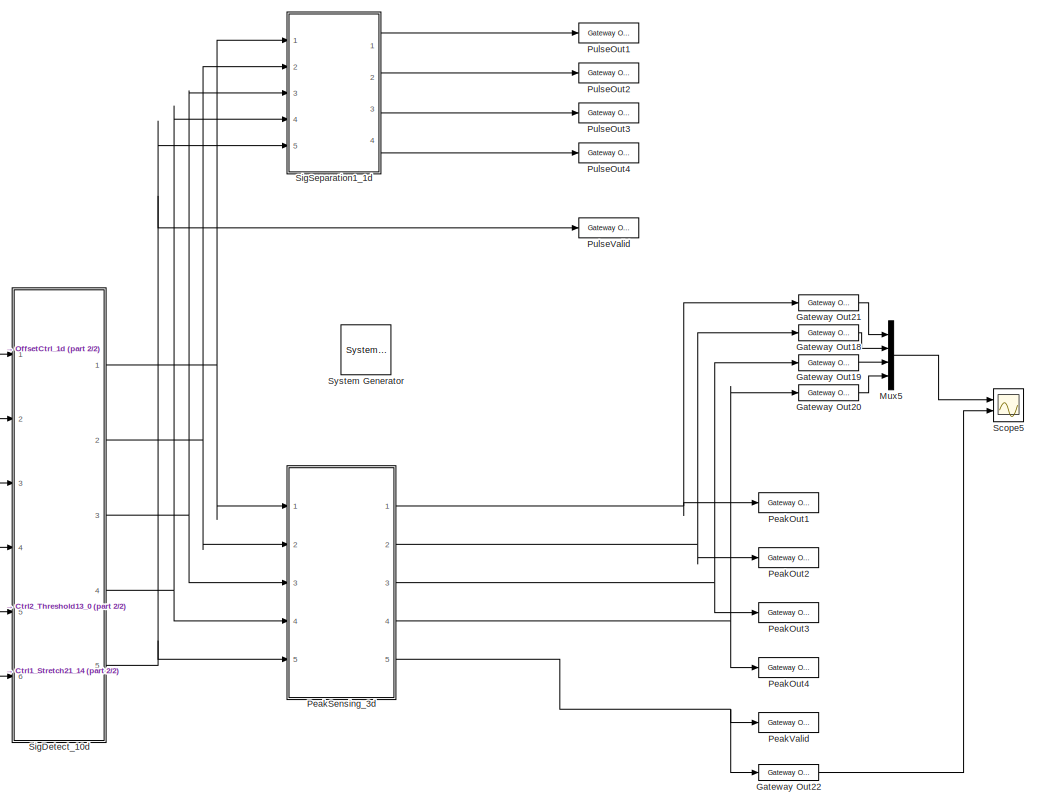
[diagram: root canvas - part 1/2, right side, full height]
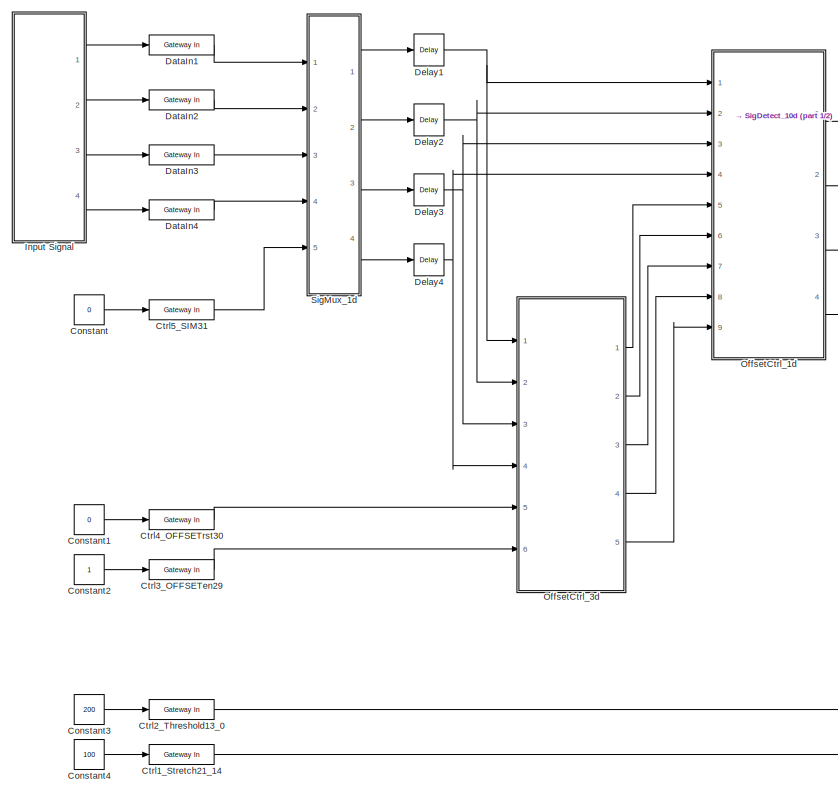
[diagram: root canvas - part 2/2, left side, full height]
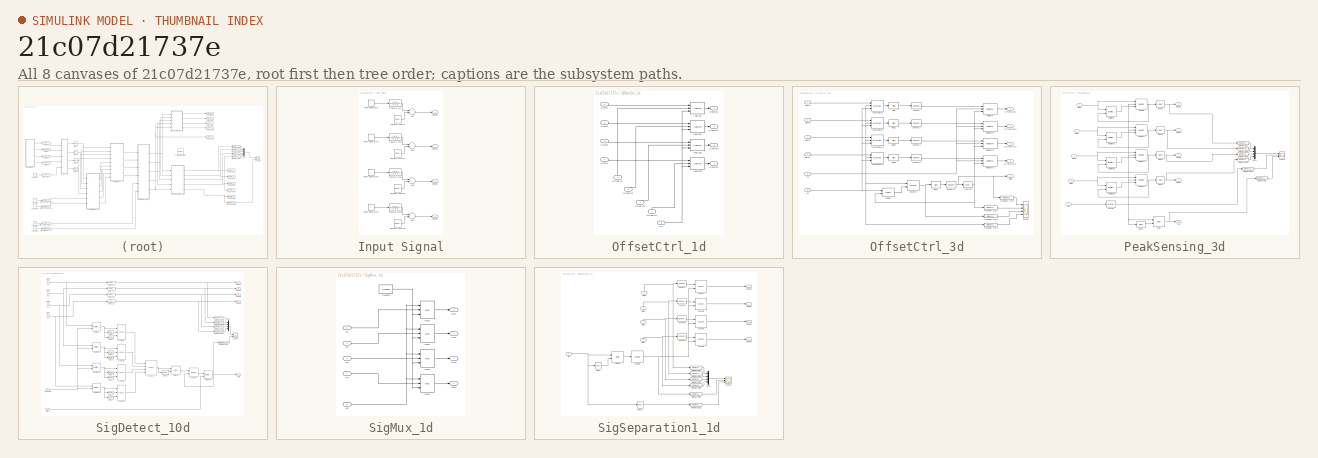
[diagram: thumbnail index - all 8 canvases of the model, root first then tree order]
MODEL slx_21c07d21737e
KIND model
BLOCK [Reference]  System Generator  REF=xbsIndex_r4/ System Generator
  AttributesFormatString = System\nGenerator
  Impl_file = ISE Defaults
  Ports = []
  SourceBlock = xbsIndex_r4/ System Generator
  SourceType = Xilinx System Generator Block
  Synth_file = XST Defaults
  Tag = genX
  UserDataPersistent = on
  block_type = sysgen
  clock_wrapper = Clock Enables
  core_generation = According to Block Masks
  dbl_ovrd = According to Block Masks
  dcm_input_clock_period = 10
  deprecated_control = off
  directory = <userpath>/Documents/System Generator/11_Gamma_Simple/1_HDL_Netlist_lx45
  eval_field = 0
  has_advanced_control = 0
  incr_netlist = off
  infoedit = System Generator
  package = fgg484
  part = xc6slx45
  proj_type = Project Navigator
  run_coregen = off
  sg_icon_stat = 50,50,0,0,token,white,0,58c5b5770fe5f7c311f53dbc6e73f0f6,right,,[ ],[ ]
  sg_mask_display = fprintf('','COMMENT: begin icon graphics');\npatch([0 50 50 0 0 ],[0 0 50 50 0 ],[1 1 1 ]);\npatch([1.6375 16.81 27.31 37.81 48.31 27.31 12.1375 1.6375 ],[36.655 36.655 47.155 36.655 47.155 47.155 47.155 36.655 ],[0.933333 0.203922 0.141176 ]);\npatch([12.1375 27.31 16.81 1.6375 12.1375 ],[26.155 26.155 36.655 36.655 26.155 ],[0.698039 0.0313725 0.219608 ]);\npatch([1.6375 16.81 27.31 12.1375 1.6375 ]...<+327ch>
  sggui_pos = 1419, 227, 464, 449
  simulink_period = 1
  speed = -2
  synthesis_tool = XST
  sysclk_period = 9
  testbench = off
  trim_vbits = Everywhere in SubSystem
  xilinxfamily = spartan6
BLOCK [Constant] Constant
  Value = 0
BLOCK [Constant] Constant1
  Value = 0
BLOCK [Constant] Constant2
BLOCK [Constant] Constant3
  Value = 200
BLOCK [Constant] Constant4
  Value = 100
BLOCK [Reference] Ctrl1_Stretch21_14  REF=xbsIndex_r4/Gateway In
  ADCChannel = '1'
  LOCs = {}
  Ports = [1, 1]
  SourceBlock = xbsIndex_r4/Gateway In
  SourceType = Xilinx Gateway In Block
  UseAsADC = off
  arith_type = Unsigned
  bin_pt = 0
  block_type = gatewayin
  dbl_ovrd = off
  exp_width = 8
  frac_width = 24
  gui_display_data_type = Fixed-point
  has_advanced_control = 0
  hdl_port = on
  infoedit = Gateway in block.  Converts inputs of type Simulink integer, single, double and fixed-point to  Xilinx fixed-point or floating-point data type.<br><br>Hardware notes:  In hardware these blocks become top level input ports.  <repeated x9 — deduplicated; at blocks: Ctrl1_Stretch21_14, Ctrl2_Threshold13_0, Ctrl3_OFFSETen29, Ctrl4_OFFSETrst30, Ctrl5_SIM31, DataIn1, DataIn2, DataIn3, DataIn4>
  inherit_from_input = off
  locs_specified = off
  n_bits = 8
  overflow = Saturate
  period = 1
  preci_type = Single
  quantization = Round  (unbiased: +/- Inf)
  sg_icon_stat = 65,20,1,1,white,yellow,1,00d3666e,right,,[ ],[ ]
  sg_mask_display = fprintf('','COMMENT: begin icon graphics');\npatch([0 65 65 0 0 ],[0 0 20 20 0 ],[0.95 0.93 0.65 ]);\nplot([0 65 65 0 0 ],[0 0 20 20 0 ]);\npatch([27.55 30.44 32.44 34.44 36.44 32.44 29.55 27.55 ],[12.22 12.22 14.22 12.22 14.22 14.22 14.22 12.22 ],[1 1 1 ]);\npatch([29.55 32.44 30.44 27.55 29.55 ],[10.22 10.22 12.22 12.22 10.22 ],[0.985 0.979 0.895 ]);\npatch([27.55 30.44 32.44 29.55 27.55 ],[8.22 8.22...<+383ch>  <repeated x9 — deduplicated; at blocks: Ctrl1_Stretch21_14, Ctrl2_Threshold13_0, Ctrl3_OFFSETen29, Ctrl4_OFFSETrst30, Ctrl5_SIM31, DataIn1, DataIn2, DataIn3, DataIn4>
  sggui_pos = -1,-1,-1,-1
  timing_constraint = None
  xl_area = [0,0,0,0,0,0,0]
  xl_use_area = off
BLOCK [Reference] Ctrl2_Threshold13_0  REF=xbsIndex_r4/Gateway In
  ADCChannel = '1'
  LOCs = {}
  Ports = [1, 1]
  SourceBlock = xbsIndex_r4/Gateway In
  SourceType = Xilinx Gateway In Block
  UseAsADC = off
  arith_type = Signed  (2's comp)
  bin_pt = 0
  block_type = gatewayin
  dbl_ovrd = off
  exp_width = 8
  frac_width = 24
  gui_display_data_type = Fixed-point
  has_advanced_control = 0
  hdl_port = on
  inherit_from_input = off
  locs_specified = off
  n_bits = 14
  overflow = Saturate
  period = 1
  preci_type = Single
  quantization = Round  (unbiased: +/- Inf)
  sg_icon_stat = 65,20,1,1,white,yellow,1,00d3666e,right,,[ ],[ ]
  sggui_pos = -1,-1,-1,-1
  timing_constraint = None
  xl_area = [0,0,0,0,0,0,0]
  xl_use_area = off
BLOCK [Reference] Ctrl3_OFFSETen29  REF=xbsIndex_r4/Gateway In
  ADCChannel = '1'
  LOCs = {}
  Ports = [1, 1]
  SourceBlock = xbsIndex_r4/Gateway In
  SourceType = Xilinx Gateway In Block
  UseAsADC = off
  arith_type = Boolean
  bin_pt = 14
  block_type = gatewayin
  dbl_ovrd = off
  exp_width = 8
  frac_width = 24
  gui_display_data_type = Boolean
  has_advanced_control = 0
  hdl_port = on
  inherit_from_input = off
  locs_specified = off
  n_bits = 16
  overflow = Saturate
  period = 1
  preci_type = Single
  quantization = Round  (unbiased: +/- Inf)
  sg_icon_stat = 65,20,1,1,white,yellow,1,00d3666e,right,,[ ],[ ]
  sggui_pos = -1,-1,-1,-1
  timing_constraint = None
  xl_area = [0,0,0,0,0,0,0]
  xl_use_area = off
BLOCK [Reference] Ctrl4_OFFSETrst30  REF=xbsIndex_r4/Gateway In
  ADCChannel = '1'
  LOCs = {}
  Ports = [1, 1]
  SourceBlock = xbsIndex_r4/Gateway In
  SourceType = Xilinx Gateway In Block
  UseAsADC = off
  arith_type = Boolean
  bin_pt = 14
  block_type = gatewayin
  dbl_ovrd = off
  exp_width = 8
  frac_width = 24
  gui_display_data_type = Boolean
  has_advanced_control = 0
  hdl_port = on
  inherit_from_input = off
  locs_specified = off
  n_bits = 16
  overflow = Saturate
  period = 1
  preci_type = Single
  quantization = Round  (unbiased: +/- Inf)
  sg_icon_stat = 65,20,1,1,white,yellow,1,00d3666e,right,,[ ],[ ]
  sggui_pos = -1,-1,-1,-1
  timing_constraint = None
  xl_area = [0,0,0,0,0,0,0]
  xl_use_area = off
BLOCK [Reference] Ctrl5_SIM31  REF=xbsIndex_r4/Gateway In
  ADCChannel = '1'
  LOCs = {}
  Ports = [1, 1]
  SourceBlock = xbsIndex_r4/Gateway In
  SourceType = Xilinx Gateway In Block
  UseAsADC = off
  arith_type = Boolean
  bin_pt = 14
  block_type = gatewayin
  dbl_ovrd = off
  exp_width = 8
  frac_width = 24
  gui_display_data_type = Boolean
  has_advanced_control = 0
  hdl_port = on
  inherit_from_input = off
  locs_specified = off
  n_bits = 16
  overflow = Saturate
  period = 1
  preci_type = Single
  quantization = Round  (unbiased: +/- Inf)
  sg_icon_stat = 65,20,1,1,white,yellow,1,00d3666e,right,,[ ],[ ]
  sggui_pos = -1,-1,-1,-1
  timing_constraint = None
  xl_area = [0,0,0,0,0,0,0]
  xl_use_area = off
BLOCK [Reference] DataIn1  REF=xbsIndex_r4/Gateway In
  ADCChannel = '1'
  LOCs = {}
  Ports = [1, 1]
  SourceBlock = xbsIndex_r4/Gateway In
  SourceType = Xilinx Gateway In Block
  UseAsADC = off
  arith_type = Signed  (2's comp)
  bin_pt = 0
  block_type = gatewayin
  dbl_ovrd = off
  exp_width = 8
  frac_width = 24
  gui_display_data_type = Fixed-point
  has_advanced_control = 0
  hdl_port = on
  inherit_from_input = off
  locs_specified = off
  n_bits = 14
  overflow = Saturate
  period = 1
  preci_type = Single
  quantization = Round  (unbiased: +/- Inf)
  sg_icon_stat = 65,20,1,1,white,yellow,1,00d3666e,right,,[ ],[ ]
  sggui_pos = -1,-1,-1,-1
  timing_constraint = None
  xl_area = [0,0,0,0,0,0,0]
  xl_use_area = off
BLOCK [Reference] DataIn2  REF=xbsIndex_r4/Gateway In
  ADCChannel = '1'
  LOCs = {}
  Ports = [1, 1]
  SourceBlock = xbsIndex_r4/Gateway In
  SourceType = Xilinx Gateway In Block
  UseAsADC = off
  arith_type = Signed  (2's comp)
  bin_pt = 0
  block_type = gatewayin
  dbl_ovrd = off
  exp_width = 8
  frac_width = 24
  gui_display_data_type = Fixed-point
  has_advanced_control = 0
  hdl_port = on
  inherit_from_input = off
  locs_specified = off
  n_bits = 14
  overflow = Saturate
  period = 1
  preci_type = Single
  quantization = Round  (unbiased: +/- Inf)
  sg_icon_stat = 65,20,1,1,white,yellow,1,00d3666e,right,,[ ],[ ]
  sggui_pos = -1,-1,-1,-1
  timing_constraint = None
  xl_area = [0,0,0,0,0,0,0]
  xl_use_area = off
BLOCK [Reference] DataIn3  REF=xbsIndex_r4/Gateway In
  ADCChannel = '1'
  LOCs = {}
  Ports = [1, 1]
  SourceBlock = xbsIndex_r4/Gateway In
  SourceType = Xilinx Gateway In Block
  UseAsADC = off
  arith_type = Signed  (2's comp)
  bin_pt = 0
  block_type = gatewayin
  dbl_ovrd = off
  exp_width = 8
  frac_width = 24
  gui_display_data_type = Fixed-point
  has_advanced_control = 0
  hdl_port = on
  inherit_from_input = off
  locs_specified = off
  n_bits = 14
  overflow = Saturate
  period = 1
  preci_type = Single
  quantization = Round  (unbiased: +/- Inf)
  sg_icon_stat = 65,20,1,1,white,yellow,1,00d3666e,right,,[ ],[ ]
  sggui_pos = -1,-1,-1,-1
  timing_constraint = None
  xl_area = [0,0,0,0,0,0,0]
  xl_use_area = off
BLOCK [Reference] DataIn4  REF=xbsIndex_r4/Gateway In
  ADCChannel = '1'
  LOCs = {}
  Ports = [1, 1]
  SourceBlock = xbsIndex_r4/Gateway In
  SourceType = Xilinx Gateway In Block
  UseAsADC = off
  arith_type = Signed  (2's comp)
  bin_pt = 0
  block_type = gatewayin
  dbl_ovrd = off
  exp_width = 8
  frac_width = 24
  gui_display_data_type = Fixed-point
  has_advanced_control = 0
  hdl_port = on
  inherit_from_input = off
  locs_specified = off
  n_bits = 14
  overflow = Saturate
  period = 1
  preci_type = Single
  quantization = Round  (unbiased: +/- Inf)
  sg_icon_stat = 65,20,1,1,white,yellow,1,00d3666e,right,,[ ],[ ]
  sggui_pos = -1,-1,-1,-1
  timing_constraint = None
  xl_area = [0,0,0,0,0,0,0]
  xl_use_area = off
BLOCK [Reference] Delay1  REF=xbsIndex_r4/Delay
  Ports = [1, 1]
  SourceBlock = xbsIndex_r4/Delay
  SourceType = Xilinx Delay Block
  block_type = delay
  dbl_ovrd = off
  en = off
  has_advanced_control = 0
  infoedit = Hardware notes: A delay line is a chain, each link of which is an SRL16 followed by a flip-flop.
  infoeditControl = Selection of Reset will increase slice count due to use of real FFs and instead of SRLs
  latency = 1
  reg_retiming = off
  rst = off
  sg_icon_stat = 30,32,1,1,white,blue,0,07b98262,right,,[ ],[ ]
  sg_mask_display = fprintf('','COMMENT: begin icon graphics');\npatch([0 30 30 0 0 ],[0 0 32 32 0 ],[0.77 0.82 0.91 ]);\nplot([0 30 30 0 0 ],[0 0 32 32 0 ]);\npatch([6.1 11.88 15.88 19.88 23.88 15.88 10.1 6.1 ],[20.44 20.44 24.44 20.44 24.44 24.44 24.44 20.44 ],[1 1 1 ]);\npatch([10.1 15.88 11.88 6.1 10.1 ],[16.44 16.44 20.44 20.44 16.44 ],[0.931 0.946 0.973 ]);\npatch([6.1 11.88 15.88 10.1 6.1 ],[12.44 12.44 16.44 16.44...<+298ch>  <repeated x4 — deduplicated; at blocks: Delay1, Delay2, Delay3, Delay4>
  sggui_pos = -1,-1,-1,-1
  xl_area = [0,0,0,0,0,0,0]
  xl_use_area = off
BLOCK [Reference] Delay2  REF=xbsIndex_r4/Delay
  Ports = [1, 1]
  SourceBlock = xbsIndex_r4/Delay
  SourceType = Xilinx Delay Block
  block_type = delay
  dbl_ovrd = off
  en = off
  has_advanced_control = 0
  infoedit = Hardware notes: A delay line is a chain, each link of which is an SRL16 followed by a flip-flop.
  infoeditControl = Selection of Reset will increase slice count due to use of real FFs and instead of SRLs
  latency = 1
  reg_retiming = off
  rst = off
  sg_icon_stat = 30,32,1,1,white,blue,0,07b98262,right,,[ ],[ ]
  sggui_pos = -1,-1,-1,-1
  xl_area = [0,0,0,0,0,0,0]
  xl_use_area = off
BLOCK [Reference] Delay3  REF=xbsIndex_r4/Delay
  Ports = [1, 1]
  SourceBlock = xbsIndex_r4/Delay
  SourceType = Xilinx Delay Block
  block_type = delay
  dbl_ovrd = off
  en = off
  has_advanced_control = 0
  infoedit = Hardware notes: A delay line is a chain, each link of which is an SRL16 followed by a flip-flop.
  infoeditControl = Selection of Reset will increase slice count due to use of real FFs and instead of SRLs
  latency = 1
  reg_retiming = off
  rst = off
  sg_icon_stat = 30,32,1,1,white,blue,0,07b98262,right,,[ ],[ ]
  sggui_pos = -1,-1,-1,-1
  xl_area = [0,0,0,0,0,0,0]
  xl_use_area = off
BLOCK [Reference] Delay4  REF=xbsIndex_r4/Delay
  Ports = [1, 1]
  SourceBlock = xbsIndex_r4/Delay
  SourceType = Xilinx Delay Block
  block_type = delay
  dbl_ovrd = off
  en = off
  has_advanced_control = 0
  infoedit = Hardware notes: A delay line is a chain, each link of which is an SRL16 followed by a flip-flop.
  infoeditControl = Selection of Reset will increase slice count due to use of real FFs and instead of SRLs
  latency = 1
  reg_retiming = off
  rst = off
  sg_icon_stat = 30,32,1,1,white,blue,0,07b98262,right,,[ ],[ ]
  sggui_pos = -1,-1,-1,-1
  xl_area = [0,0,0,0,0,0,0]
  xl_use_area = off
BLOCK [Reference] Gateway Out18  REF=xbsIndex_r4/Gateway Out
  DACChannel = '1'
  LOCs = {}
  Ports = [1, 1]
  SourceBlock = xbsIndex_r4/Gateway Out
  SourceType = Xilinx Gateway Out Block
  UseAsDAC = off
  block_type = gatewayout
  has_advanced_control = 0
  hdl_port = off
  infoedit = Gateway out block.  Converts Xilinx fixed-point or floating-point type inputs into ouputs of type Simulink integer, single, double, or fixed-point.<br><br>Hardware notes:  In hardware these blocks become top level output ports or are discarded, depending on how they are configured.  <repeated x36 — deduplicated; at blocks: Gateway Out18, Gateway Out19, Gateway Out20, Gateway Out21, Gateway Out22, Gateway Out1, Gateway Out2, Gateway Out3, Gateway Out7, PeakOut1, PeakOut2, PeakOut3, PeakOut4, PeakValid, PulseOut1, PulseOut2, +8 more>
  inherit_from_input = off
  locs_specified = off
  sg_icon_stat = 60,16,1,1,white,grey,1,632ec840,right,,[ ],[ ]
  sg_mask_display = fprintf('','COMMENT: begin icon graphics');\npatch([0 60 60 0 0 ],[0 0 16 16 0 ],[0.88 0.88 0.88 ]);\nplot([0 60 60 0 0 ],[0 0 16 16 0 ]);\npatch([25.55 28.44 30.44 32.44 34.44 30.44 27.55 25.55 ],[10.22 10.22 12.22 10.22 12.22 12.22 12.22 10.22 ],[1 1 1 ]);\npatch([27.55 30.44 28.44 25.55 27.55 ],[8.22 8.22 10.22 10.22 8.22 ],[0.964 0.964 0.964 ]);\npatch([25.55 28.44 30.44 27.55 25.55 ],[6.22 6.22 8....<+376ch>  <repeated x26 — deduplicated; at blocks: Gateway Out18, Gateway Out19, Gateway Out20, Gateway Out21, Gateway Out22, Gateway Out1, Gateway Out2, Gateway Out3, Gateway Out7, Gateway Out10, Gateway Out11, Gateway Out12, Gateway Out9, Gateway Out23>
  sggui_pos = -1,-1,-1,-1
  timing_constraint = None
  xl_area = [0,0,0,0,0,0,0]
  xl_use_area = off
BLOCK [Reference] Gateway Out19  REF=xbsIndex_r4/Gateway Out
  DACChannel = '1'
  LOCs = {}
  Ports = [1, 1]
  SourceBlock = xbsIndex_r4/Gateway Out
  SourceType = Xilinx Gateway Out Block
  UseAsDAC = off
  block_type = gatewayout
  has_advanced_control = 0
  hdl_port = off
  inherit_from_input = off
  locs_specified = off
  sg_icon_stat = 60,16,1,1,white,grey,1,632ec840,right,,[ ],[ ]
  sggui_pos = -1,-1,-1,-1
  timing_constraint = None
  xl_area = [0,0,0,0,0,0,0]
  xl_use_area = off
BLOCK [Reference] Gateway Out20  REF=xbsIndex_r4/Gateway Out
  DACChannel = '1'
  LOCs = {}
  Ports = [1, 1]
  SourceBlock = xbsIndex_r4/Gateway Out
  SourceType = Xilinx Gateway Out Block
  UseAsDAC = off
  block_type = gatewayout
  has_advanced_control = 0
  hdl_port = off
  inherit_from_input = off
  locs_specified = off
  sg_icon_stat = 60,16,1,1,white,grey,1,632ec840,right,,[ ],[ ]
  sggui_pos = -1,-1,-1,-1
  timing_constraint = None
  xl_area = [0,0,0,0,0,0,0]
  xl_use_area = off
BLOCK [Reference] Gateway Out21  REF=xbsIndex_r4/Gateway Out
  DACChannel = '1'
  LOCs = {}
  Ports = [1, 1]
  SourceBlock = xbsIndex_r4/Gateway Out
  SourceType = Xilinx Gateway Out Block
  UseAsDAC = off
  block_type = gatewayout
  has_advanced_control = 0
  hdl_port = off
  inherit_from_input = off
  locs_specified = off
  sg_icon_stat = 60,16,1,1,white,grey,1,632ec840,right,,[ ],[ ]
  sggui_pos = -1,-1,-1,-1
  timing_constraint = None
  xl_area = [0,0,0,0,0,0,0]
  xl_use_area = off
BLOCK [Reference] Gateway Out22  REF=xbsIndex_r4/Gateway Out
  DACChannel = '1'
  LOCs = {}
  Ports = [1, 1]
  SourceBlock = xbsIndex_r4/Gateway Out
  SourceType = Xilinx Gateway Out Block
  UseAsDAC = off
  block_type = gatewayout
  has_advanced_control = 0
  hdl_port = off
  inherit_from_input = off
  locs_specified = off
  sg_icon_stat = 60,16,1,1,white,grey,1,632ec840,right,,[ ],[ ]
  sggui_pos = -1,-1,-1,-1
  timing_constraint = None
  xl_area = [0,0,0,0,0,0,0]
  xl_use_area = off
BLOCK [SubSystem] Input Signal
  FunctionWithSeparateData = off
  MaskHideContents = off
  MinAlgLoopOccurrences = off
  Opaque = off
  Ports = [0, 4]
  PropExecContextOutsideSubsystem = off
  RTWSystemCode = Auto
  RequestExecContextInheritance = off
BLOCK [Sum] Input Signal/Add
  InputSameDT = off
  OutDataTypeStr = Inherit: Inherit via internal rule
  Ports = [2, 1]
  SaturateOnIntegerOverflow = off
BLOCK [Sum] Input Signal/Add1
  InputSameDT = off
  OutDataTypeStr = Inherit: Inherit via internal rule
  Ports = [2, 1]
  SaturateOnIntegerOverflow = off
BLOCK [Sum] Input Signal/Add2
  InputSameDT = off
  OutDataTypeStr = Inherit: Inherit via internal rule
  Ports = [2, 1]
  SaturateOnIntegerOverflow = off
BLOCK [Sum] Input Signal/Add3
  InputSameDT = off
  OutDataTypeStr = Inherit: Inherit via internal rule
  Ports = [2, 1]
  SaturateOnIntegerOverflow = off
BLOCK [DiscretePulseGenerator] Input Signal/Pulse Generator
  Amplitude = 5000
  Period = 1000
  Ports = [0, 1]
  PulseType = Time based
BLOCK [DiscretePulseGenerator] Input Signal/Pulse Generator1
  Amplitude = 3000
  Period = 1000
  PhaseDelay = 2
  Ports = [0, 1]
  PulseType = Time based
  PulseWidth = 2
BLOCK [DiscretePulseGenerator] Input Signal/Pulse Generator2
  Amplitude = 1000
  Period = 1000
  PhaseDelay = 4
  Ports = [0, 1]
  PulseType = Time based
  PulseWidth = 2
BLOCK [DiscretePulseGenerator] Input Signal/Pulse Generator3
  Amplitude = 800
  Period = 1000
  PhaseDelay = 6
  Ports = [0, 1]
  PulseType = Time based
  PulseWidth = 2
BLOCK [Reference] Input Signal/Random Source  REF=dspsrcs4/Random
Source
  CltLength = 12
  DataType = Double
  IsInherit = off
  MaxVal = 100
  MeanVal = 0
  MinVal = -100
  NormMethod = Ziggurat
  OutComplex = Real
  Ports = [0, 1]
  RepMode = Not repeatable
  SampFrame = 1
  SampMode = Discrete
  SampTime = 1
  SourceBlock = dspsrcs4/Random\nSource
  SourceType = Random Source
  SrcType = Uniform
  UserDataPersistent = on
  VarVal = 1
  rawSeed = 1
BLOCK [Reference] Input Signal/Random Source1  REF=dspsrcs4/Random
Source
  CltLength = 12
  DataType = Double
  IsInherit = off
  MaxVal = 100
  MeanVal = 0
  MinVal = -100
  NormMethod = Ziggurat
  OutComplex = Real
  Ports = [0, 1]
  RepMode = Not repeatable
  SampFrame = 1
  SampMode = Discrete
  SampTime = 1
  SourceBlock = dspsrcs4/Random\nSource
  SourceType = Random Source
  SrcType = Uniform
  UserDataPersistent = on
  VarVal = 1
  rawSeed = 1
BLOCK [Reference] Input Signal/Random Source2  REF=dspsrcs4/Random
Source
  CltLength = 12
  DataType = Double
  IsInherit = off
  MaxVal = 100
  MeanVal = 0
  MinVal = -100
  NormMethod = Ziggurat
  OutComplex = Real
  Ports = [0, 1]
  RepMode = Not repeatable
  SampFrame = 1
  SampMode = Discrete
  SampTime = 1
  SourceBlock = dspsrcs4/Random\nSource
  SourceType = Random Source
  SrcType = Uniform
  UserDataPersistent = on
  VarVal = 1
  rawSeed = 1
BLOCK [Reference] Input Signal/Random Source3  REF=dspsrcs4/Random
Source
  CltLength = 12
  DataType = Double
  IsInherit = off
  MaxVal = 100
  MeanVal = 0
  MinVal = -100
  NormMethod = Ziggurat
  OutComplex = Real
  Ports = [0, 1]
  RepMode = Not repeatable
  SampFrame = 1
  SampMode = Discrete
  SampTime = 1
  SourceBlock = dspsrcs4/Random\nSource
  SourceType = Random Source
  SrcType = Uniform
  UserDataPersistent = on
  VarVal = 1
  rawSeed = 1
BLOCK [Outport] Input Signal/SigOut1
  IconDisplay = Port number
BLOCK [Outport] Input Signal/SigOut2
  IconDisplay = Port number
  Port = 2
BLOCK [Outport] Input Signal/SigOut3
  IconDisplay = Port number
  Port = 3
BLOCK [Outport] Input Signal/SigOut4
  IconDisplay = Port number
  Port = 4
BLOCK [TransferFcn] Input Signal/Transfer Fcn
  Denominator = [1 0.1]
  Numerator = [0.1]
BLOCK [TransferFcn] Input Signal/Transfer Fcn1
  Denominator = [1 0.1]
  Numerator = [0.1]
BLOCK [TransferFcn] Input Signal/Transfer Fcn2
  Denominator = [1 0.1]
  Numerator = [0.1]
BLOCK [TransferFcn] Input Signal/Transfer Fcn3
  Denominator = [1 0.1]
  Numerator = [0.1]
BLOCK [Mux] Mux5
  DisplayOption = bar
  Ports = [4, 1]
BLOCK [SubSystem] OffsetCtrl_1d
  FunctionWithSeparateData = off
  MaskHideContents = off
  MinAlgLoopOccurrences = off
  Opaque = off
  Ports = [9, 4]
  PropExecContextOutsideSubsystem = off
  RTWSystemCode = Auto
  RequestExecContextInheritance = off
BLOCK [Reference] OffsetCtrl_1d/AddSub  REF=xbsIndex_r4/AddSub
  Ports = [3, 1]
  SourceBlock = xbsIndex_r4/AddSub
  SourceType = Xilinx Adder/Subtracter Block
  arith_type = Signed  (2's comp)
  bin_pt = 0
  block_type = addsub
  dbl_ovrd = off
  en = on
  has_advanced_control = 0
  hw_selection = Fabric
  latency = 1
  mode = Subtraction
  n_bits = 14
  overflow = Saturate
  pipelined = off
  precision = User Defined
  quantization = Round  (unbiased: +/- Inf)
  sg_icon_stat = 55,44,3,1,white,blue,0,30170062,right,,[ ],[ ]
  sg_mask_display = fprintf('','COMMENT: begin icon graphics');\npatch([0 55 55 0 0 ],[0 0 44 44 0 ],[0.77 0.82 0.91 ]);\nplot([0 55 55 0 0 ],[0 0 44 44 0 ]);\npatch([13.65 22.32 28.32 34.32 40.32 28.32 19.65 13.65 ],[28.66 28.66 34.66 28.66 34.66 34.66 34.66 28.66 ],[1 1 1 ]);\npatch([19.65 28.32 22.32 13.65 19.65 ],[22.66 22.66 28.66 28.66 22.66 ],[0.931 0.946 0.973 ]);\npatch([13.65 22.32 28.32 19.65 13.65 ],[16.66 16....<+575ch>  <repeated x4 — deduplicated; at blocks: AddSub, AddSub1, AddSub2, AddSub3>
  sggui_pos = 1697,381,361,302
  use_behavioral_HDL = off
  use_carryin = off
  use_carryout = off
  xl_area = [0,0,0,0,0,0,0]
  xl_use_area = off
BLOCK [Reference] OffsetCtrl_1d/AddSub1  REF=xbsIndex_r4/AddSub
  Ports = [3, 1]
  SourceBlock = xbsIndex_r4/AddSub
  SourceType = Xilinx Adder/Subtracter Block
  arith_type = Signed  (2's comp)
  bin_pt = 0
  block_type = addsub
  dbl_ovrd = off
  en = on
  has_advanced_control = 0
  hw_selection = Fabric
  latency = 1
  mode = Subtraction
  n_bits = 14
  overflow = Saturate
  pipelined = off
  precision = User Defined
  quantization = Round  (unbiased: +/- Inf)
  sg_icon_stat = 55,44,3,1,white,blue,0,30170062,right,,[ ],[ ]
  sggui_pos = 1697,381,361,302
  use_behavioral_HDL = off
  use_carryin = off
  use_carryout = off
  xl_area = [0,0,0,0,0,0,0]
  xl_use_area = off
BLOCK [Reference] OffsetCtrl_1d/AddSub2  REF=xbsIndex_r4/AddSub
  Ports = [3, 1]
  SourceBlock = xbsIndex_r4/AddSub
  SourceType = Xilinx Adder/Subtracter Block
  arith_type = Signed  (2's comp)
  bin_pt = 0
  block_type = addsub
  dbl_ovrd = off
  en = on
  has_advanced_control = 0
  hw_selection = Fabric
  latency = 1
  mode = Subtraction
  n_bits = 14
  overflow = Saturate
  pipelined = off
  precision = User Defined
  quantization = Round  (unbiased: +/- Inf)
  sg_icon_stat = 55,44,3,1,white,blue,0,30170062,right,,[ ],[ ]
  sggui_pos = 1697,381,361,302
  use_behavioral_HDL = off
  use_carryin = off
  use_carryout = off
  xl_area = [0,0,0,0,0,0,0]
  xl_use_area = off
BLOCK [Reference] OffsetCtrl_1d/AddSub3  REF=xbsIndex_r4/AddSub
  Ports = [3, 1]
  SourceBlock = xbsIndex_r4/AddSub
  SourceType = Xilinx Adder/Subtracter Block
  arith_type = Signed  (2's comp)
  bin_pt = 0
  block_type = addsub
  dbl_ovrd = off
  en = on
  has_advanced_control = 0
  hw_selection = Fabric
  latency = 1
  mode = Subtraction
  n_bits = 14
  overflow = Saturate
  pipelined = off
  precision = User Defined
  quantization = Round  (unbiased: +/- Inf)
  sg_icon_stat = 55,44,3,1,white,blue,0,30170062,right,,[ ],[ ]
  sggui_pos = 1697,381,361,302
  use_behavioral_HDL = off
  use_carryin = off
  use_carryout = off
  xl_area = [0,0,0,0,0,0,0]
  xl_use_area = off
BLOCK [Inport] OffsetCtrl_1d/En
  IconDisplay = Port number
  Port = 9
BLOCK [Inport] OffsetCtrl_1d/OffsetIn1
  IconDisplay = Port number
  Port = 5
BLOCK [Inport] OffsetCtrl_1d/OffsetIn2
  IconDisplay = Port number
  Port = 6
BLOCK [Inport] OffsetCtrl_1d/OffsetIn3
  IconDisplay = Port number
  Port = 7
BLOCK [Inport] OffsetCtrl_1d/OffsetIn4
  IconDisplay = Port number
  Port = 8
BLOCK [Inport] OffsetCtrl_1d/SigIn1
  IconDisplay = Port number
BLOCK [Inport] OffsetCtrl_1d/SigIn2
  IconDisplay = Port number
  Port = 2
BLOCK [Inport] OffsetCtrl_1d/SigIn3
  IconDisplay = Port number
  Port = 3
BLOCK [Inport] OffsetCtrl_1d/SigIn4
  IconDisplay = Port number
  Port = 4
BLOCK [Outport] OffsetCtrl_1d/SigOut1
  IconDisplay = Port number
BLOCK [Outport] OffsetCtrl_1d/SigOut2
  IconDisplay = Port number
  Port = 2
BLOCK [Outport] OffsetCtrl_1d/SigOut3
  IconDisplay = Port number
  Port = 3
BLOCK [Outport] OffsetCtrl_1d/SigOut4
  IconDisplay = Port number
  Port = 4
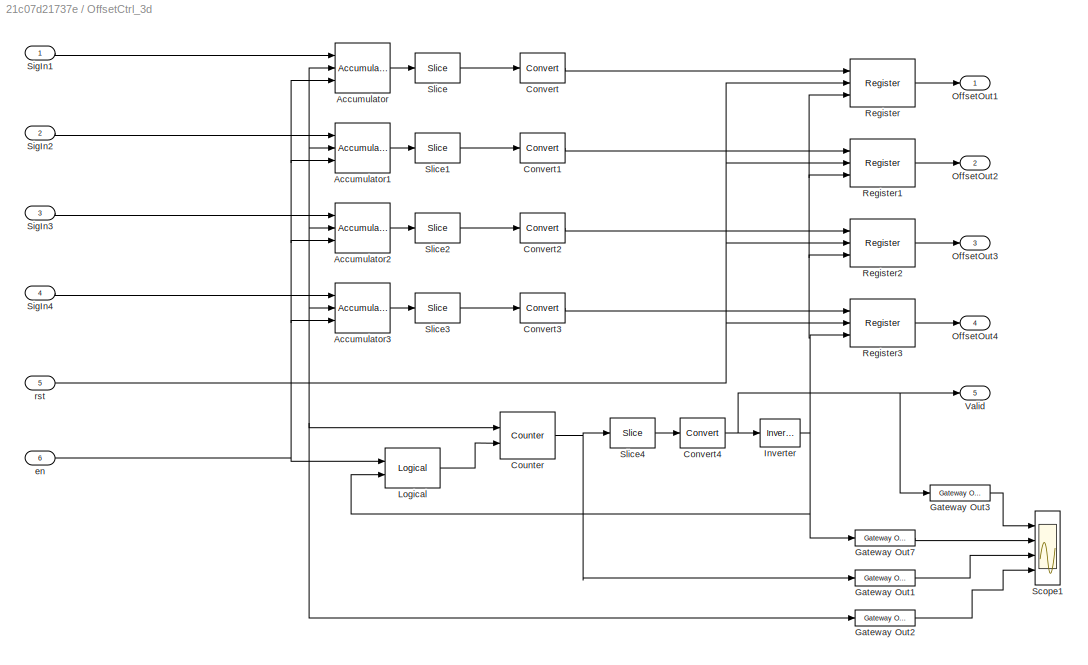
BLOCK [SubSystem] OffsetCtrl_3d
  FunctionWithSeparateData = off
  MaskHideContents = off
  MinAlgLoopOccurrences = off
  Opaque = off
  Ports = [6, 5]
  PropExecContextOutsideSubsystem = off
  RTWSystemCode = Auto
  RequestExecContextInheritance = off
BLOCK [Reference] OffsetCtrl_3d/Accumulator  REF=xbsIndex_r4/Accumulator
  Ports = [3, 1]
  SourceBlock = xbsIndex_r4/Accumulator
  SourceType = Xilinx Accumulator Block
  block_type = accum
  dbl_ovrd = off
  en = on
  has_advanced_control = 0
  hasbypass = off
  implementation = Fabric
  infoedit = Adder or subtracter-based accumulator.   Output type and binary point position match the input.<br><br>Hardware notes: When "Reinitialize with input 'b' on reset" is selected, the accumulator is forced to run at the system rate even if the input 'b' is running at a slower rate.  <repeated x4 — deduplicated; at blocks: Accumulator, Accumulator1, Accumulator2, Accumulator3>
  infoeditControl = reset for floating point data type must be asserted for a minimum of 2 cycles
  latency = 0
  lsb = -100
  msb = 100
  msb_inp = 100
  n_bits = 32
  operation = Add
  overflow = Wrap
  rst = on
  scale = 1
  sg_icon_stat = 55,50,3,1,white,blue,0,ee9eb47a,right,,[ ],[ ]
  sg_mask_display = fprintf('','COMMENT: begin icon graphics');\npatch([0 55 55 0 0 ],[0 0 50 50 0 ],[0.77 0.82 0.91 ]);\nplot([0 55 55 0 0 ],[0 0 50 50 0 ]);\npatch([11.425 21.54 28.54 35.54 42.54 28.54 18.425 11.425 ],[32.77 32.77 39.77 32.77 39.77 39.77 39.77 32.77 ],[1 1 1 ]);\npatch([18.425 28.54 21.54 11.425 18.425 ],[25.77 25.77 32.77 32.77 25.77 ],[0.931 0.946 0.973 ]);\npatch([11.425 21.54 28.54 18.425 11.425 ],[...<+476ch>  <repeated x4 — deduplicated; at blocks: Accumulator, Accumulator1, Accumulator2, Accumulator3>
  sggui_pos = 1396,38,328,600
  use_behavioral_HDL = on
  xl_area = [0,0,0,0,0,0,0]
  xl_use_area = off
BLOCK [Reference] OffsetCtrl_3d/Accumulator1  REF=xbsIndex_r4/Accumulator
  Ports = [3, 1]
  SourceBlock = xbsIndex_r4/Accumulator
  SourceType = Xilinx Accumulator Block
  block_type = accum
  dbl_ovrd = off
  en = on
  has_advanced_control = 0
  hasbypass = off
  implementation = Fabric
  infoeditControl = reset for floating point data type must be asserted for a minimum of 2 cycles
  latency = 0
  lsb = -100
  msb = 100
  msb_inp = 100
  n_bits = 32
  operation = Add
  overflow = Wrap
  rst = on
  scale = 1
  sg_icon_stat = 55,50,3,1,white,blue,0,ee9eb47a,right,,[ ],[ ]
  sggui_pos = 1396,38,328,600
  use_behavioral_HDL = on
  xl_area = [0,0,0,0,0,0,0]
  xl_use_area = off
BLOCK [Reference] OffsetCtrl_3d/Accumulator2  REF=xbsIndex_r4/Accumulator
  Ports = [3, 1]
  SourceBlock = xbsIndex_r4/Accumulator
  SourceType = Xilinx Accumulator Block
  block_type = accum
  dbl_ovrd = off
  en = on
  has_advanced_control = 0
  hasbypass = off
  implementation = Fabric
  infoeditControl = reset for floating point data type must be asserted for a minimum of 2 cycles
  latency = 0
  lsb = -100
  msb = 100
  msb_inp = 100
  n_bits = 32
  operation = Add
  overflow = Wrap
  rst = on
  scale = 1
  sg_icon_stat = 55,50,3,1,white,blue,0,ee9eb47a,right,,[ ],[ ]
  sggui_pos = 1396,38,328,600
  use_behavioral_HDL = on
  xl_area = [0,0,0,0,0,0,0]
  xl_use_area = off
BLOCK [Reference] OffsetCtrl_3d/Accumulator3  REF=xbsIndex_r4/Accumulator
  Ports = [3, 1]
  SourceBlock = xbsIndex_r4/Accumulator
  SourceType = Xilinx Accumulator Block
  block_type = accum
  dbl_ovrd = off
  en = on
  has_advanced_control = 0
  hasbypass = off
  implementation = Fabric
  infoeditControl = reset for floating point data type must be asserted for a minimum of 2 cycles
  latency = 0
  lsb = -100
  msb = 100
  msb_inp = 100
  n_bits = 32
  operation = Add
  overflow = Wrap
  rst = on
  scale = 1
  sg_icon_stat = 55,50,3,1,white,blue,0,ee9eb47a,right,,[ ],[ ]
  sggui_pos = 1396,38,328,600
  use_behavioral_HDL = on
  xl_area = [0,0,0,0,0,0,0]
  xl_use_area = off
BLOCK [Reference] OffsetCtrl_3d/Convert  REF=xbsIndex_r4/Convert
  Ports = [1, 1]
  SourceBlock = xbsIndex_r4/Convert
  SourceType = Xilinx Type Converter Block
  arith_type = Signed  (2's comp)
  bin_pt = 0
  block_type = convert
  dbl_ovrd = off
  en = off
  exp_bits = 8
  float_type = Single
  fraction_bits = 24
  gui_display_data_type = Fixed-point
  has_advanced_control = 0
  infoedit = Hardware notes: rounding and saturating require hardware resources; truncating and wrapping do not.
  latency = 1
  n_bits = 20
  overflow = Wrap
  pipeline = off
  quantization = Round  (unbiased: +/- Inf)
  sg_icon_stat = 45,30,1,1,white,blue,0,0c6bad53,right,,[ ],[ ]
  sg_mask_display = fprintf('','COMMENT: begin icon graphics');\npatch([0 45 45 0 0 ],[0 0 30 30 0 ],[0.77 0.82 0.91 ]);\nplot([0 45 45 0 0 ],[0 0 30 30 0 ]);\npatch([13.1 18.88 22.88 26.88 30.88 22.88 17.1 13.1 ],[19.44 19.44 23.44 19.44 23.44 23.44 23.44 19.44 ],[1 1 1 ]);\npatch([17.1 22.88 18.88 13.1 17.1 ],[15.44 15.44 19.44 19.44 15.44 ],[0.931 0.946 0.973 ]);\npatch([13.1 18.88 22.88 17.1 13.1 ],[11.44 11.44 15.44 ...<+387ch>  <repeated x9 — deduplicated; at blocks: Convert, Convert1, Convert2, Convert3, Convert4>
  sggui_pos = -1,-1,-1,-1
  xl_area = [0,0,0,0,0,0,0]
  xl_use_area = off
BLOCK [Reference] OffsetCtrl_3d/Convert1  REF=xbsIndex_r4/Convert
  Ports = [1, 1]
  SourceBlock = xbsIndex_r4/Convert
  SourceType = Xilinx Type Converter Block
  arith_type = Signed  (2's comp)
  bin_pt = 0
  block_type = convert
  dbl_ovrd = off
  en = off
  exp_bits = 8
  float_type = Single
  fraction_bits = 24
  gui_display_data_type = Fixed-point
  has_advanced_control = 0
  infoedit = Hardware notes: rounding and saturating require hardware resources; truncating and wrapping do not.
  latency = 1
  n_bits = 20
  overflow = Wrap
  pipeline = off
  quantization = Round  (unbiased: +/- Inf)
  sg_icon_stat = 45,30,1,1,white,blue,0,0c6bad53,right,,[ ],[ ]
  sggui_pos = -1,-1,-1,-1
  xl_area = [0,0,0,0,0,0,0]
  xl_use_area = off
BLOCK [Reference] OffsetCtrl_3d/Convert2  REF=xbsIndex_r4/Convert
  Ports = [1, 1]
  SourceBlock = xbsIndex_r4/Convert
  SourceType = Xilinx Type Converter Block
  arith_type = Signed  (2's comp)
  bin_pt = 0
  block_type = convert
  dbl_ovrd = off
  en = off
  exp_bits = 8
  float_type = Single
  fraction_bits = 24
  gui_display_data_type = Fixed-point
  has_advanced_control = 0
  infoedit = Hardware notes: rounding and saturating require hardware resources; truncating and wrapping do not.
  latency = 1
  n_bits = 20
  overflow = Wrap
  pipeline = off
  quantization = Round  (unbiased: +/- Inf)
  sg_icon_stat = 45,30,1,1,white,blue,0,0c6bad53,right,,[ ],[ ]
  sggui_pos = -1,-1,-1,-1
  xl_area = [0,0,0,0,0,0,0]
  xl_use_area = off
BLOCK [Reference] OffsetCtrl_3d/Convert3  REF=xbsIndex_r4/Convert
  Ports = [1, 1]
  SourceBlock = xbsIndex_r4/Convert
  SourceType = Xilinx Type Converter Block
  arith_type = Signed  (2's comp)
  bin_pt = 0
  block_type = convert
  dbl_ovrd = off
  en = off
  exp_bits = 8
  float_type = Single
  fraction_bits = 24
  gui_display_data_type = Fixed-point
  has_advanced_control = 0
  infoedit = Hardware notes: rounding and saturating require hardware resources; truncating and wrapping do not.
  latency = 1
  n_bits = 20
  overflow = Wrap
  pipeline = off
  quantization = Round  (unbiased: +/- Inf)
  sg_icon_stat = 45,30,1,1,white,blue,0,0c6bad53,right,,[ ],[ ]
  sggui_pos = -1,-1,-1,-1
  xl_area = [0,0,0,0,0,0,0]
  xl_use_area = off
BLOCK [Reference] OffsetCtrl_3d/Convert4  REF=xbsIndex_r4/Convert
  Ports = [1, 1]
  SourceBlock = xbsIndex_r4/Convert
  SourceType = Xilinx Type Converter Block
  arith_type = Boolean
  bin_pt = 0
  block_type = convert
  dbl_ovrd = off
  en = off
  exp_bits = 8
  float_type = Single
  fraction_bits = 24
  gui_display_data_type = Boolean
  has_advanced_control = 0
  infoedit = Hardware notes: rounding and saturating require hardware resources; truncating and wrapping do not.
  latency = 1
  n_bits = 20
  overflow = Wrap
  pipeline = off
  quantization = Round  (unbiased: +/- Inf)
  sg_icon_stat = 45,30,1,1,white,blue,0,0c6bad53,right,,[ ],[ ]
  sggui_pos = -1,-1,-1,-1
  xl_area = [0,0,0,0,0,0,0]
  xl_use_area = off
BLOCK [Reference] OffsetCtrl_3d/Counter  REF=xbsIndex_r4/Counter
  Ports = [2, 1]
  SourceBlock = xbsIndex_r4/Counter
  SourceType = Xilinx Counter Block
  arith_type = Unsigned
  bin_pt = 0
  block_type = counter
  cnt_by_val = 1
  cnt_to = 4000
  cnt_type = Free Running
  dbl_ovrd = off
  en = on
  explicit_period = on
  has_advanced_control = 0
  implementation = Fabric
  infoedit = Hardware notes: Free running counters are the least expensive in hardware.  A count limited counter is implemented by combining a counter with a comparator.
  load_pin = off
  n_bits = 13
  operation = Up
  period = 1
  rst = on
  sg_icon_stat = 55,47,2,1,white,blue,0,ae3608d6,right,,[ ],[ ]
  sg_mask_display = fprintf('','COMMENT: begin icon graphics');\npatch([0 55 55 0 0 ],[0 0 47 47 0 ],[0.77 0.82 0.91 ]);\nplot([0 55 55 0 0 ],[0 0 47 47 0 ]);\npatch([13.65 22.32 28.32 34.32 40.32 28.32 19.65 13.65 ],[29.66 29.66 35.66 29.66 35.66 35.66 35.66 29.66 ],[1 1 1 ]);\npatch([19.65 28.32 22.32 13.65 19.65 ],[23.66 23.66 29.66 29.66 23.66 ],[0.931 0.946 0.973 ]);\npatch([13.65 22.32 28.32 19.65 13.65 ],[17.66 17....<+420ch>
  sggui_pos = 1422,372,328,625
  start_count = 0
  use_behavioral_HDL = off
  xl_area = [0,0,0,0,0,0,0]
  xl_use_area = off
BLOCK [Reference] OffsetCtrl_3d/Gateway Out1  REF=xbsIndex_r4/Gateway Out
  DACChannel = '1'
  LOCs = {}
  Ports = [1, 1]
  SourceBlock = xbsIndex_r4/Gateway Out
  SourceType = Xilinx Gateway Out Block
  UseAsDAC = off
  block_type = gatewayout
  has_advanced_control = 0
  hdl_port = off
  inherit_from_input = off
  locs_specified = off
  sg_icon_stat = 60,16,1,1,white,grey,1,632ec840,right,,[ ],[ ]
  sggui_pos = -1,-1,-1,-1
  timing_constraint = None
  xl_area = [0,0,0,0,0,0,0]
  xl_use_area = off
BLOCK [Reference] OffsetCtrl_3d/Gateway Out2  REF=xbsIndex_r4/Gateway Out
  DACChannel = '1'
  LOCs = {}
  Ports = [1, 1]
  SourceBlock = xbsIndex_r4/Gateway Out
  SourceType = Xilinx Gateway Out Block
  UseAsDAC = off
  block_type = gatewayout
  has_advanced_control = 0
  hdl_port = off
  inherit_from_input = off
  locs_specified = off
  sg_icon_stat = 60,16,1,1,white,grey,1,632ec840,right,,[ ],[ ]
  sggui_pos = -1,-1,-1,-1
  timing_constraint = None
  xl_area = [0,0,0,0,0,0,0]
  xl_use_area = off
BLOCK [Reference] OffsetCtrl_3d/Gateway Out3  REF=xbsIndex_r4/Gateway Out
  DACChannel = '1'
  LOCs = {}
  Ports = [1, 1]
  SourceBlock = xbsIndex_r4/Gateway Out
  SourceType = Xilinx Gateway Out Block
  UseAsDAC = off
  block_type = gatewayout
  has_advanced_control = 0
  hdl_port = off
  inherit_from_input = off
  locs_specified = off
  sg_icon_stat = 60,16,1,1,white,grey,1,632ec840,right,,[ ],[ ]
  sggui_pos = -1,-1,-1,-1
  timing_constraint = None
  xl_area = [0,0,0,0,0,0,0]
  xl_use_area = off
BLOCK [Reference] OffsetCtrl_3d/Gateway Out7  REF=xbsIndex_r4/Gateway Out
  DACChannel = '1'
  LOCs = {}
  Ports = [1, 1]
  SourceBlock = xbsIndex_r4/Gateway Out
  SourceType = Xilinx Gateway Out Block
  UseAsDAC = off
  block_type = gatewayout
  has_advanced_control = 0
  hdl_port = off
  inherit_from_input = off
  locs_specified = off
  sg_icon_stat = 60,16,1,1,white,grey,1,632ec840,right,,[ ],[ ]
  sggui_pos = -1,-1,-1,-1
  timing_constraint = None
  xl_area = [0,0,0,0,0,0,0]
  xl_use_area = off
BLOCK [Reference] OffsetCtrl_3d/Inverter  REF=xbsIndex_r4/Inverter
  Ports = [1, 1]
  SourceBlock = xbsIndex_r4/Inverter
  SourceType = Xilinx Inverter Block
  block_type = inv
  dbl_ovrd = off
  en = off
  has_advanced_control = 0
  infoedit = Bitwise logical negation (one's complement) operator.
  latency = 1
  sg_icon_stat = 40,28,1,1,white,blue,0,e69ac283,right,,[ ],[ ]
  sg_mask_display = fprintf('','COMMENT: begin icon graphics');\npatch([0 40 40 0 0 ],[0 0 28 28 0 ],[0.77 0.82 0.91 ]);\nplot([0 40 40 0 0 ],[0 0 28 28 0 ]);\npatch([11.1 16.88 20.88 24.88 28.88 20.88 15.1 11.1 ],[18.44 18.44 22.44 18.44 22.44 22.44 22.44 18.44 ],[1 1 1 ]);\npatch([15.1 20.88 16.88 11.1 15.1 ],[14.44 14.44 18.44 18.44 14.44 ],[0.931 0.946 0.973 ]);\npatch([11.1 16.88 20.88 15.1 11.1 ],[10.44 10.44 14.44 ...<+344ch>
  sggui_pos = -1,-1,-1,-1
  xl_area = [0,0,0,0,0,0,0]
  xl_use_area = off
BLOCK [Reference] OffsetCtrl_3d/Logical  REF=xbsIndex_r4/Logical
  Ports = [2, 1]
  SourceBlock = xbsIndex_r4/Logical
  SourceType = Xilinx Logical Block Block
  align_bp = on
  arith_type = Unsigned
  bin_pt = 0
  block_type = logical
  dbl_ovrd = off
  en = off
  has_advanced_control = 0
  inputs = 2
  latency = 1
  logical_function = AND
  n_bits = 16
  precision = Full
  sg_icon_stat = 55,40,2,1,white,blue,0,e7f9d02e,right,,[ ],[ ]
  sg_mask_display = fprintf('','COMMENT: begin icon graphics');\npatch([0 55 55 0 0 ],[0 0 40 40 0 ],[0.77 0.82 0.91 ]);\nplot([0 55 55 0 0 ],[0 0 40 40 0 ]);\npatch([15.875 23.1 28.1 33.1 38.1 28.1 20.875 15.875 ],[25.55 25.55 30.55 25.55 30.55 30.55 30.55 25.55 ],[1 1 1 ]);\npatch([20.875 28.1 23.1 15.875 20.875 ],[20.55 20.55 25.55 25.55 20.55 ],[0.931 0.946 0.973 ]);\npatch([15.875 23.1 28.1 20.875 15.875 ],[15.55 15....<+360ch>
  sggui_pos = -1,-1,-1,-1
  xl_area = [0,0,0,0,0,0,0]
  xl_use_area = off
BLOCK [Outport] OffsetCtrl_3d/OffsetOut1
  IconDisplay = Port number
BLOCK [Outport] OffsetCtrl_3d/OffsetOut2
  IconDisplay = Port number
  Port = 2
BLOCK [Outport] OffsetCtrl_3d/OffsetOut3
  IconDisplay = Port number
  Port = 3
BLOCK [Outport] OffsetCtrl_3d/OffsetOut4
  IconDisplay = Port number
  Port = 4
BLOCK [Reference] OffsetCtrl_3d/Register  REF=xbsIndex_r4/Register
  Ports = [3, 1]
  SourceBlock = xbsIndex_r4/Register
  SourceType = Xilinx Register Block
  block_type = register
  dbl_ovrd = off
  en = on
  has_advanced_control = 0
  init = 0
  rst = on
  sg_icon_stat = 65,48,3,1,white,blue,0,30546de1,right,,[ ],[ ]
  sg_mask_display = fprintf('','COMMENT: begin icon graphics');\npatch([0 65 65 0 0 ],[0 0 48 48 0 ],[0.77 0.82 0.91 ]);\nplot([0 65 65 0 0 ],[0 0 48 48 0 ]);\npatch([18.65 27.32 33.32 39.32 45.32 33.32 24.65 18.65 ],[30.66 30.66 36.66 30.66 36.66 36.66 36.66 30.66 ],[1 1 1 ]);\npatch([24.65 33.32 27.32 18.65 24.65 ],[24.66 24.66 30.66 30.66 24.66 ],[0.931 0.946 0.973 ]);\npatch([18.65 27.32 33.32 24.65 18.65 ],[18.66 18....<+490ch>  <repeated x4 — deduplicated; at blocks: Register, Register1, Register2, Register3>
  sggui_pos = -1,-1,-1,-1
  xl_area = [0,0,0,0,0,0,0]
  xl_use_area = off
BLOCK [Reference] OffsetCtrl_3d/Register1  REF=xbsIndex_r4/Register
  Ports = [3, 1]
  SourceBlock = xbsIndex_r4/Register
  SourceType = Xilinx Register Block
  block_type = register
  dbl_ovrd = off
  en = on
  has_advanced_control = 0
  init = 0
  rst = on
  sg_icon_stat = 65,48,3,1,white,blue,0,30546de1,right,,[ ],[ ]
  sggui_pos = -1,-1,-1,-1
  xl_area = [0,0,0,0,0,0,0]
  xl_use_area = off
BLOCK [Reference] OffsetCtrl_3d/Register2  REF=xbsIndex_r4/Register
  Ports = [3, 1]
  SourceBlock = xbsIndex_r4/Register
  SourceType = Xilinx Register Block
  block_type = register
  dbl_ovrd = off
  en = on
  has_advanced_control = 0
  init = 0
  rst = on
  sg_icon_stat = 65,48,3,1,white,blue,0,30546de1,right,,[ ],[ ]
  sggui_pos = -1,-1,-1,-1
  xl_area = [0,0,0,0,0,0,0]
  xl_use_area = off
BLOCK [Reference] OffsetCtrl_3d/Register3  REF=xbsIndex_r4/Register
  Ports = [3, 1]
  SourceBlock = xbsIndex_r4/Register
  SourceType = Xilinx Register Block
  block_type = register
  dbl_ovrd = off
  en = on
  has_advanced_control = 0
  init = 0
  rst = on
  sg_icon_stat = 65,48,3,1,white,blue,0,30546de1,right,,[ ],[ ]
  sggui_pos = -1,-1,-1,-1
  xl_area = [0,0,0,0,0,0,0]
  xl_use_area = off
BLOCK [Scope] OffsetCtrl_3d/Scope1
  DataFormat = StructureWithTime
  Floating = off
  LimitDataPoints = off
  NumInputPorts = 4
  Ports = [4]
  SampleTime = 0
  SaveName = ScopeData1
  ShowLegends = off
  YMax = 5~5~5~5
  YMin = -5~-5~-5~-5
  ZoomMode = xonly
BLOCK [Inport] OffsetCtrl_3d/SigIn1
  IconDisplay = Port number
BLOCK [Inport] OffsetCtrl_3d/SigIn2
  IconDisplay = Port number
  Port = 2
BLOCK [Inport] OffsetCtrl_3d/SigIn3
  IconDisplay = Port number
  Port = 3
BLOCK [Inport] OffsetCtrl_3d/SigIn4
  IconDisplay = Port number
  Port = 4
BLOCK [Reference] OffsetCtrl_3d/Slice  REF=xbsIndex_r4/Slice
  Ports = [1, 1]
  SourceBlock = xbsIndex_r4/Slice
  SourceType = Xilinx Bit Slice Extractor Block
  base0 = LSB of Input
  base1 = MSB of Input
  bit0 = 0
  bit1 = 0
  block_type = slice
  boolean_output = off
  dbl_ovrd = off
  has_advanced_control = 0
  infoedit = Extracts a given range of bits from each input sample and presents it at the output.  The output type is ordinarily unsigned with binary point at zero, but can be Boolean when the slice is one bit wide.<br><br>Hardware notes: In hardware this block costs nothing.  <repeated x5 — deduplicated; at blocks: Slice, Slice1, Slice2, Slice3, Slice4>
  mode = Upper Bit Location + Width
  nbits = 20
  sg_icon_stat = 45,30,1,1,white,blue,0,1fd851a7,right,,[ ],[ ]
  sg_mask_display = fprintf('','COMMENT: begin icon graphics');\npatch([0 45 45 0 0 ],[0 0 30 30 0 ],[0.77 0.82 0.91 ]);\nplot([0 45 45 0 0 ],[0 0 30 30 0 ]);\npatch([13.1 18.88 22.88 26.88 30.88 22.88 17.1 13.1 ],[19.44 19.44 23.44 19.44 23.44 23.44 23.44 19.44 ],[1 1 1 ]);\npatch([17.1 22.88 18.88 13.1 17.1 ],[15.44 15.44 19.44 19.44 15.44 ],[0.931 0.946 0.973 ]);\npatch([13.1 18.88 22.88 17.1 13.1 ],[11.44 11.44 15.44 ...<+304ch>  <repeated x5 — deduplicated; at blocks: Slice, Slice1, Slice2, Slice3, Slice4>
  sggui_pos = -1,-1,-1,-1
BLOCK [Reference] OffsetCtrl_3d/Slice1  REF=xbsIndex_r4/Slice
  Ports = [1, 1]
  SourceBlock = xbsIndex_r4/Slice
  SourceType = Xilinx Bit Slice Extractor Block
  base0 = LSB of Input
  base1 = MSB of Input
  bit0 = 0
  bit1 = 0
  block_type = slice
  boolean_output = off
  dbl_ovrd = off
  has_advanced_control = 0
  mode = Upper Bit Location + Width
  nbits = 20
  sg_icon_stat = 45,30,1,1,white,blue,0,1fd851a7,right,,[ ],[ ]
  sggui_pos = -1,-1,-1,-1
BLOCK [Reference] OffsetCtrl_3d/Slice2  REF=xbsIndex_r4/Slice
  Ports = [1, 1]
  SourceBlock = xbsIndex_r4/Slice
  SourceType = Xilinx Bit Slice Extractor Block
  base0 = LSB of Input
  base1 = MSB of Input
  bit0 = 0
  bit1 = 0
  block_type = slice
  boolean_output = off
  dbl_ovrd = off
  has_advanced_control = 0
  mode = Upper Bit Location + Width
  nbits = 20
  sg_icon_stat = 45,30,1,1,white,blue,0,1fd851a7,right,,[ ],[ ]
  sggui_pos = -1,-1,-1,-1
BLOCK [Reference] OffsetCtrl_3d/Slice3  REF=xbsIndex_r4/Slice
  Ports = [1, 1]
  SourceBlock = xbsIndex_r4/Slice
  SourceType = Xilinx Bit Slice Extractor Block
  base0 = LSB of Input
  base1 = MSB of Input
  bit0 = 0
  bit1 = 0
  block_type = slice
  boolean_output = off
  dbl_ovrd = off
  has_advanced_control = 0
  mode = Upper Bit Location + Width
  nbits = 20
  sg_icon_stat = 45,30,1,1,white,blue,0,1fd851a7,right,,[ ],[ ]
  sggui_pos = -1,-1,-1,-1
BLOCK [Reference] OffsetCtrl_3d/Slice4  REF=xbsIndex_r4/Slice
  Ports = [1, 1]
  SourceBlock = xbsIndex_r4/Slice
  SourceType = Xilinx Bit Slice Extractor Block
  base0 = LSB of Input
  base1 = MSB of Input
  bit0 = 0
  bit1 = 0
  block_type = slice
  boolean_output = off
  dbl_ovrd = off
  has_advanced_control = 0
  mode = Upper Bit Location + Width
  nbits = 1
  sg_icon_stat = 45,30,1,1,white,blue,0,1fd851a7,right,,[ ],[ ]
  sggui_pos = -1,-1,-1,-1
BLOCK [Outport] OffsetCtrl_3d/Valid
  IconDisplay = Port number
  Port = 5
BLOCK [Inport] OffsetCtrl_3d/en
  IconDisplay = Port number
  Port = 6
BLOCK [Inport] OffsetCtrl_3d/rst
  IconDisplay = Port number
  Port = 5
BLOCK [Reference] PeakOut1  REF=xbsIndex_r4/Gateway Out
  DACChannel = '1'
  LOCs = {}
  Ports = [1, 1]
  SourceBlock = xbsIndex_r4/Gateway Out
  SourceType = Xilinx Gateway Out Block
  UseAsDAC = off
  block_type = gatewayout
  has_advanced_control = 0
  hdl_port = on
  inherit_from_input = off
  locs_specified = off
  sg_icon_stat = 60,20,1,1,white,yellow,1,cc31b7ac,right,,[ ],[ ]
  sg_mask_display = fprintf('','COMMENT: begin icon graphics');\npatch([0 60 60 0 0 ],[0 0 20 20 0 ],[0.95 0.93 0.65 ]);\nplot([0 60 60 0 0 ],[0 0 20 20 0 ]);\npatch([25.55 28.44 30.44 32.44 34.44 30.44 27.55 25.55 ],[12.22 12.22 14.22 12.22 14.22 14.22 14.22 12.22 ],[1 1 1 ]);\npatch([27.55 30.44 28.44 25.55 27.55 ],[10.22 10.22 12.22 12.22 10.22 ],[0.985 0.979 0.895 ]);\npatch([25.55 28.44 30.44 27.55 25.55 ],[8.22 8.22...<+384ch>  <repeated x10 — deduplicated; at blocks: PeakOut1, PeakOut2, PeakOut3, PeakOut4, PeakValid, PulseOut1, PulseOut2, PulseOut3, PulseOut4, PulseValid>
  sggui_pos = -1,-1,-1,-1
  timing_constraint = None
  xl_area = [0,0,0,0,0,0,0]
  xl_use_area = off
BLOCK [Reference] PeakOut2  REF=xbsIndex_r4/Gateway Out
  DACChannel = '1'
  LOCs = {}
  Ports = [1, 1]
  SourceBlock = xbsIndex_r4/Gateway Out
  SourceType = Xilinx Gateway Out Block
  UseAsDAC = off
  block_type = gatewayout
  has_advanced_control = 0
  hdl_port = on
  inherit_from_input = off
  locs_specified = off
  sg_icon_stat = 60,20,1,1,white,yellow,1,cc31b7ac,right,,[ ],[ ]
  sggui_pos = -1,-1,-1,-1
  timing_constraint = None
  xl_area = [0,0,0,0,0,0,0]
  xl_use_area = off
BLOCK [Reference] PeakOut3  REF=xbsIndex_r4/Gateway Out
  DACChannel = '1'
  LOCs = {}
  Ports = [1, 1]
  SourceBlock = xbsIndex_r4/Gateway Out
  SourceType = Xilinx Gateway Out Block
  UseAsDAC = off
  block_type = gatewayout
  has_advanced_control = 0
  hdl_port = on
  inherit_from_input = off
  locs_specified = off
  sg_icon_stat = 60,20,1,1,white,yellow,1,cc31b7ac,right,,[ ],[ ]
  sggui_pos = -1,-1,-1,-1
  timing_constraint = None
  xl_area = [0,0,0,0,0,0,0]
  xl_use_area = off
BLOCK [Reference] PeakOut4  REF=xbsIndex_r4/Gateway Out
  DACChannel = '1'
  LOCs = {}
  Ports = [1, 1]
  SourceBlock = xbsIndex_r4/Gateway Out
  SourceType = Xilinx Gateway Out Block
  UseAsDAC = off
  block_type = gatewayout
  has_advanced_control = 0
  hdl_port = on
  inherit_from_input = off
  locs_specified = off
  sg_icon_stat = 60,20,1,1,white,yellow,1,cc31b7ac,right,,[ ],[ ]
  sggui_pos = -1,-1,-1,-1
  timing_constraint = None
  xl_area = [0,0,0,0,0,0,0]
  xl_use_area = off
BLOCK [SubSystem] PeakSensing_3d
  FunctionWithSeparateData = off
  MaskHideContents = off
  MinAlgLoopOccurrences = off
  Opaque = off
  Ports = [5, 5]
  PropExecContextOutsideSubsystem = off
  RTWSystemCode = Auto
  RequestExecContextInheritance = off
BLOCK [Reference] PeakSensing_3d/Delay  REF=xbsIndex_r4/Delay
  Ports = [2, 1]
  SourceBlock = xbsIndex_r4/Delay
  SourceType = Xilinx Delay Block
  block_type = delay
  dbl_ovrd = off
  en = off
  has_advanced_control = 0
  infoedit = Hardware notes: A delay line is a chain, each link of which is an SRL16 followed by a flip-flop.
  infoeditControl = Selection of Reset will increase slice count due to use of real FFs and instead of SRLs
  latency = 1
  reg_retiming = off
  rst = on
  sg_icon_stat = 60,56,2,1,white,blue,0,c56fa9d5,right,,[ ],[ ]
  sg_mask_display = fprintf('','COMMENT: begin icon graphics');\npatch([0 60 60 0 0 ],[0 0 56 56 0 ],[0.77 0.82 0.91 ]);\nplot([0 60 60 0 0 ],[0 0 56 56 0 ]);\npatch([12.2 23.76 31.76 39.76 47.76 31.76 20.2 12.2 ],[36.88 36.88 44.88 36.88 44.88 44.88 44.88 36.88 ],[1 1 1 ]);\npatch([20.2 31.76 23.76 12.2 20.2 ],[28.88 28.88 36.88 36.88 28.88 ],[0.931 0.946 0.973 ]);\npatch([12.2 23.76 31.76 20.2 12.2 ],[20.88 20.88 28.88 ...<+352ch>  <repeated x3 — deduplicated; at blocks: Delay, Delay8, Delay5>
  sggui_pos = 1404,217,328,336
  xl_area = [0,0,0,0,0,0,0]
  xl_use_area = off
BLOCK [Reference] PeakSensing_3d/Delay1  REF=xbsIndex_r4/Delay
  Ports = [1, 1]
  SourceBlock = xbsIndex_r4/Delay
  SourceType = Xilinx Delay Block
  block_type = delay
  dbl_ovrd = off
  en = off
  has_advanced_control = 0
  infoedit = Hardware notes: A delay line is a chain, each link of which is an SRL16 followed by a flip-flop.
  infoeditControl = Selection of Reset will increase slice count due to use of real FFs and instead of SRLs
  latency = 1
  reg_retiming = off
  rst = off
  sg_icon_stat = 45,36,1,1,white,blue,0,07b98262,right,,[ ],[ ]
  sg_mask_display = fprintf('','COMMENT: begin icon graphics');\npatch([0 45 45 0 0 ],[0 0 36 36 0 ],[0.77 0.82 0.91 ]);\nplot([0 45 45 0 0 ],[0 0 36 36 0 ]);\npatch([10.875 18.1 23.1 28.1 33.1 23.1 15.875 10.875 ],[23.55 23.55 28.55 23.55 28.55 28.55 28.55 23.55 ],[1 1 1 ]);\npatch([15.875 23.1 18.1 10.875 15.875 ],[18.55 18.55 23.55 23.55 18.55 ],[0.931 0.946 0.973 ]);\npatch([10.875 18.1 23.1 15.875 10.875 ],[13.55 13....<+315ch>  <repeated x5 — deduplicated; at blocks: Delay1, Delay2, Delay3, Delay4, Delay5>
  sggui_pos = 1396,31,328,336
  xl_area = [0,0,0,0,0,0,0]
  xl_use_area = off
BLOCK [Reference] PeakSensing_3d/Delay2  REF=xbsIndex_r4/Delay
  Ports = [1, 1]
  SourceBlock = xbsIndex_r4/Delay
  SourceType = Xilinx Delay Block
  block_type = delay
  dbl_ovrd = off
  en = off
  has_advanced_control = 0
  infoedit = Hardware notes: A delay line is a chain, each link of which is an SRL16 followed by a flip-flop.
  infoeditControl = Selection of Reset will increase slice count due to use of real FFs and instead of SRLs
  latency = 2
  reg_retiming = off
  rst = off
  sg_icon_stat = 45,36,1,1,white,blue,0,85ce9542,right,,[ ],[ ]
  sggui_pos = 1319,136,328,336
  xl_area = [0,0,0,0,0,0,0]
  xl_use_area = off
BLOCK [Reference] PeakSensing_3d/Delay3  REF=xbsIndex_r4/Delay
  Ports = [1, 1]
  SourceBlock = xbsIndex_r4/Delay
  SourceType = Xilinx Delay Block
  block_type = delay
  dbl_ovrd = off
  en = off
  has_advanced_control = 0
  infoedit = Hardware notes: A delay line is a chain, each link of which is an SRL16 followed by a flip-flop.
  infoeditControl = Selection of Reset will increase slice count due to use of real FFs and instead of SRLs
  latency = 2
  reg_retiming = off
  rst = off
  sg_icon_stat = 45,36,1,1,white,blue,0,85ce9542,right,,[ ],[ ]
  sggui_pos = 1319,136,328,336
  xl_area = [0,0,0,0,0,0,0]
  xl_use_area = off
BLOCK [Reference] PeakSensing_3d/Delay4  REF=xbsIndex_r4/Delay
  Ports = [1, 1]
  SourceBlock = xbsIndex_r4/Delay
  SourceType = Xilinx Delay Block
  block_type = delay
  dbl_ovrd = off
  en = off
  has_advanced_control = 0
  infoedit = Hardware notes: A delay line is a chain, each link of which is an SRL16 followed by a flip-flop.
  infoeditControl = Selection of Reset will increase slice count due to use of real FFs and instead of SRLs
  latency = 2
  reg_retiming = off
  rst = off
  sg_icon_stat = 45,36,1,1,white,blue,0,85ce9542,right,,[ ],[ ]
  sggui_pos = 1319,136,328,336
  xl_area = [0,0,0,0,0,0,0]
  xl_use_area = off
BLOCK [Reference] PeakSensing_3d/Delay5  REF=xbsIndex_r4/Delay
  Ports = [1, 1]
  SourceBlock = xbsIndex_r4/Delay
  SourceType = Xilinx Delay Block
  block_type = delay
  dbl_ovrd = off
  en = off
  has_advanced_control = 0
  infoedit = Hardware notes: A delay line is a chain, each link of which is an SRL16 followed by a flip-flop.
  infoeditControl = Selection of Reset will increase slice count due to use of real FFs and instead of SRLs
  latency = 2
  reg_retiming = off
  rst = off
  sg_icon_stat = 45,36,1,1,white,blue,0,85ce9542,right,,[ ],[ ]
  sggui_pos = 1351,171,328,336
  xl_area = [0,0,0,0,0,0,0]
  xl_use_area = off
BLOCK [Inport] PeakSensing_3d/En
  IconDisplay = Port number
  Port = 5
BLOCK [Reference] PeakSensing_3d/Gateway Out1  REF=xbsIndex_r4/Gateway Out
  DACChannel = '1'
  LOCs = {}
  Ports = [1, 1]
  SourceBlock = xbsIndex_r4/Gateway Out
  SourceType = Xilinx Gateway Out Block
  UseAsDAC = off
  block_type = gatewayout
  has_advanced_control = 0
  hdl_port = off
  inherit_from_input = off
  locs_specified = off
  sg_icon_stat = 60,16,1,1,white,grey,1,632ec840,right,,[ ],[ ]
  sggui_pos = -1,-1,-1,-1
  timing_constraint = None
  xl_area = [0,0,0,0,0,0,0]
  xl_use_area = off
BLOCK [Reference] PeakSensing_3d/Gateway Out18  REF=xbsIndex_r4/Gateway Out
  DACChannel = '1'
  LOCs = {}
  Ports = [1, 1]
  SourceBlock = xbsIndex_r4/Gateway Out
  SourceType = Xilinx Gateway Out Block
  UseAsDAC = off
  block_type = gatewayout
  has_advanced_control = 0
  hdl_port = off
  inherit_from_input = off
  locs_specified = off
  sg_icon_stat = 60,16,1,1,white,grey,1,632ec840,right,,[ ],[ ]
  sggui_pos = -1,-1,-1,-1
  timing_constraint = None
  xl_area = [0,0,0,0,0,0,0]
  xl_use_area = off
BLOCK [Reference] PeakSensing_3d/Gateway Out19  REF=xbsIndex_r4/Gateway Out
  DACChannel = '1'
  LOCs = {}
  Ports = [1, 1]
  SourceBlock = xbsIndex_r4/Gateway Out
  SourceType = Xilinx Gateway Out Block
  UseAsDAC = off
  block_type = gatewayout
  has_advanced_control = 0
  hdl_port = off
  inherit_from_input = off
  locs_specified = off
  sg_icon_stat = 60,16,1,1,white,grey,1,632ec840,right,,[ ],[ ]
  sggui_pos = -1,-1,-1,-1
  timing_constraint = None
  xl_area = [0,0,0,0,0,0,0]
  xl_use_area = off
BLOCK [Reference] PeakSensing_3d/Gateway Out20  REF=xbsIndex_r4/Gateway Out
  DACChannel = '1'
  LOCs = {}
  Ports = [1, 1]
  SourceBlock = xbsIndex_r4/Gateway Out
  SourceType = Xilinx Gateway Out Block
  UseAsDAC = off
  block_type = gatewayout
  has_advanced_control = 0
  hdl_port = off
  inherit_from_input = off
  locs_specified = off
  sg_icon_stat = 60,16,1,1,white,grey,1,632ec840,right,,[ ],[ ]
  sggui_pos = -1,-1,-1,-1
  timing_constraint = None
  xl_area = [0,0,0,0,0,0,0]
  xl_use_area = off
BLOCK [Reference] PeakSensing_3d/Gateway Out21  REF=xbsIndex_r4/Gateway Out
  DACChannel = '1'
  LOCs = {}
  Ports = [1, 1]
  SourceBlock = xbsIndex_r4/Gateway Out
  SourceType = Xilinx Gateway Out Block
  UseAsDAC = off
  block_type = gatewayout
  has_advanced_control = 0
  hdl_port = off
  inherit_from_input = off
  locs_specified = off
  sg_icon_stat = 60,16,1,1,white,grey,1,632ec840,right,,[ ],[ ]
  sggui_pos = -1,-1,-1,-1
  timing_constraint = None
  xl_area = [0,0,0,0,0,0,0]
  xl_use_area = off
BLOCK [Reference] PeakSensing_3d/Gateway Out22  REF=xbsIndex_r4/Gateway Out
  DACChannel = '1'
  LOCs = {}
  Ports = [1, 1]
  SourceBlock = xbsIndex_r4/Gateway Out
  SourceType = Xilinx Gateway Out Block
  UseAsDAC = off
  block_type = gatewayout
  has_advanced_control = 0
  hdl_port = off
  inherit_from_input = off
  locs_specified = off
  sg_icon_stat = 60,16,1,1,white,grey,1,632ec840,right,,[ ],[ ]
  sggui_pos = -1,-1,-1,-1
  timing_constraint = None
  xl_area = [0,0,0,0,0,0,0]
  xl_use_area = off
BLOCK [Reference] PeakSensing_3d/Inverter  REF=xbsIndex_r4/Inverter
  Ports = [1, 1]
  SourceBlock = xbsIndex_r4/Inverter
  SourceType = Xilinx Inverter Block
  block_type = inv
  dbl_ovrd = off
  en = off
  has_advanced_control = 0
  infoedit = Bitwise logical negation (one's complement) operator.
  latency = 1
  sg_icon_stat = 50,34,1,1,white,blue,0,e69ac283,right,,[ ],[ ]
  sg_mask_display = fprintf('','COMMENT: begin icon graphics');\npatch([0 50 50 0 0 ],[0 0 34 34 0 ],[0.77 0.82 0.91 ]);\nplot([0 50 50 0 0 ],[0 0 34 34 0 ]);\npatch([16.1 21.88 25.88 29.88 33.88 25.88 20.1 16.1 ],[21.44 21.44 25.44 21.44 25.44 25.44 25.44 21.44 ],[1 1 1 ]);\npatch([20.1 25.88 21.88 16.1 20.1 ],[17.44 17.44 21.44 21.44 17.44 ],[0.931 0.946 0.973 ]);\npatch([16.1 21.88 25.88 20.1 16.1 ],[13.44 13.44 17.44 ...<+344ch>
  sggui_pos = -1,-1,-1,-1
  xl_area = [0,0,0,0,0,0,0]
  xl_use_area = off
BLOCK [Mux] PeakSensing_3d/Mux5
  DisplayOption = bar
  Ports = [4, 1]
BLOCK [Reference] PeakSensing_3d/Register  REF=xbsIndex_r4/Register
  Ports = [3, 1]
  SourceBlock = xbsIndex_r4/Register
  SourceType = Xilinx Register Block
  block_type = register
  dbl_ovrd = off
  en = on
  has_advanced_control = 0
  init = 0
  rst = on
  sg_icon_stat = 60,56,3,1,white,blue,0,30546de1,right,,[ ],[ ]
  sg_mask_display = fprintf('','COMMENT: begin icon graphics');\npatch([0 60 60 0 0 ],[0 0 56 56 0 ],[0.77 0.82 0.91 ]);\nplot([0 60 60 0 0 ],[0 0 56 56 0 ]);\npatch([12.2 23.76 31.76 39.76 47.76 31.76 20.2 12.2 ],[36.88 36.88 44.88 36.88 44.88 44.88 44.88 36.88 ],[1 1 1 ]);\npatch([20.2 31.76 23.76 12.2 20.2 ],[28.88 28.88 36.88 36.88 28.88 ],[0.931 0.946 0.973 ]);\npatch([12.2 23.76 31.76 20.2 12.2 ],[20.88 20.88 28.88 ...<+478ch>  <repeated x4 — deduplicated; at blocks: Register, Register1, Register2, Register3>
  sggui_pos = 1579,160,328,180
  xl_area = [0,0,0,0,0,0,0]
  xl_use_area = off
BLOCK [Reference] PeakSensing_3d/Register1  REF=xbsIndex_r4/Register
  Ports = [3, 1]
  SourceBlock = xbsIndex_r4/Register
  SourceType = Xilinx Register Block
  block_type = register
  dbl_ovrd = off
  en = on
  has_advanced_control = 0
  init = 0
  rst = on
  sg_icon_stat = 60,56,3,1,white,blue,0,30546de1,right,,[ ],[ ]
  sggui_pos = 1443,193,328,180
  xl_area = [0,0,0,0,0,0,0]
  xl_use_area = off
BLOCK [Reference] PeakSensing_3d/Register2  REF=xbsIndex_r4/Register
  Ports = [3, 1]
  SourceBlock = xbsIndex_r4/Register
  SourceType = Xilinx Register Block
  block_type = register
  dbl_ovrd = off
  en = on
  has_advanced_control = 0
  init = 0
  rst = on
  sg_icon_stat = 60,56,3,1,white,blue,0,30546de1,right,,[ ],[ ]
  sggui_pos = 1579,160,328,180
  xl_area = [0,0,0,0,0,0,0]
  xl_use_area = off
BLOCK [Reference] PeakSensing_3d/Register3  REF=xbsIndex_r4/Register
  Ports = [3, 1]
  SourceBlock = xbsIndex_r4/Register
  SourceType = Xilinx Register Block
  block_type = register
  dbl_ovrd = off
  en = on
  has_advanced_control = 0
  init = 0
  rst = on
  sg_icon_stat = 60,56,3,1,white,blue,0,30546de1,right,,[ ],[ ]
  sggui_pos = 1579,160,328,180
  xl_area = [0,0,0,0,0,0,0]
  xl_use_area = off
BLOCK [Reference] PeakSensing_3d/Relational  REF=xbsIndex_r4/Relational
  Ports = [2, 1]
  SourceBlock = xbsIndex_r4/Relational
  SourceType = Xilinx Arithmetic Relational Operator Block
  block_type = relational
  dbl_ovrd = off
  en = off
  has_advanced_control = 0
  latency = 0
  mode = a>b
  sg_icon_stat = 55,56,2,1,white,blue,0,b5131c97,right,,[ ],[ ]
  sg_mask_display = fprintf('','COMMENT: begin icon graphics');\npatch([0 55 55 0 0 ],[0 0 56 56 0 ],[0.77 0.82 0.91 ]);\nplot([0 55 55 0 0 ],[0 0 56 56 0 ]);\npatch([11.425 21.54 28.54 35.54 42.54 28.54 18.425 11.425 ],[35.77 35.77 42.77 35.77 42.77 42.77 42.77 35.77 ],[1 1 1 ]);\npatch([18.425 28.54 21.54 11.425 18.425 ],[28.77 28.77 35.77 35.77 28.77 ],[0.931 0.946 0.973 ]);\npatch([11.425 21.54 28.54 18.425 11.425 ],[...<+459ch>  <repeated x4 — deduplicated; at blocks: Relational, Relational1, Relational2, Relational3>
  sggui_pos = 1530,152,328,242
  xl_area = [0,0,0,0,0,0,0]
  xl_use_area = off
BLOCK [Reference] PeakSensing_3d/Relational1  REF=xbsIndex_r4/Relational
  Ports = [2, 1]
  SourceBlock = xbsIndex_r4/Relational
  SourceType = Xilinx Arithmetic Relational Operator Block
  block_type = relational
  dbl_ovrd = off
  en = off
  has_advanced_control = 0
  latency = 0
  mode = a>b
  sg_icon_stat = 55,56,2,1,white,blue,0,b5131c97,right,,[ ],[ ]
  sggui_pos = 1453,127,328,242
  xl_area = [0,0,0,0,0,0,0]
  xl_use_area = off
BLOCK [Reference] PeakSensing_3d/Relational2  REF=xbsIndex_r4/Relational
  Ports = [2, 1]
  SourceBlock = xbsIndex_r4/Relational
  SourceType = Xilinx Arithmetic Relational Operator Block
  block_type = relational
  dbl_ovrd = off
  en = off
  has_advanced_control = 0
  latency = 0
  mode = a>b
  sg_icon_stat = 55,56,2,1,white,blue,0,b5131c97,right,,[ ],[ ]
  sggui_pos = 1441,132,328,242
  xl_area = [0,0,0,0,0,0,0]
  xl_use_area = off
BLOCK [Reference] PeakSensing_3d/Relational3  REF=xbsIndex_r4/Relational
  Ports = [2, 1]
  SourceBlock = xbsIndex_r4/Relational
  SourceType = Xilinx Arithmetic Relational Operator Block
  block_type = relational
  dbl_ovrd = off
  en = off
  has_advanced_control = 0
  latency = 0
  mode = a>b
  sg_icon_stat = 55,56,2,1,white,blue,0,b5131c97,right,,[ ],[ ]
  sggui_pos = 1465,185,328,242
  xl_area = [0,0,0,0,0,0,0]
  xl_use_area = off
BLOCK [Scope] PeakSensing_3d/Scope5
  DataFormat = StructureWithTime
  Floating = off
  LimitDataPoints = off
  NumInputPorts = 3
  Ports = [3]
  SampleTime = 0
  SaveName = ScopeData7
  ShowLegends = off
  YMax = 5~5~5
  YMin = -5~-5~-5
  ZoomMode = xonly
BLOCK [Inport] PeakSensing_3d/SigIn1
  IconDisplay = Port number
BLOCK [Inport] PeakSensing_3d/SigIn2
  IconDisplay = Port number
  Port = 2
BLOCK [Inport] PeakSensing_3d/SigIn3
  IconDisplay = Port number
  Port = 3
BLOCK [Inport] PeakSensing_3d/SigIn4
  IconDisplay = Port number
  Port = 4
BLOCK [Outport] PeakSensing_3d/SigOut1
  IconDisplay = Port number
BLOCK [Outport] PeakSensing_3d/SigOut2
  IconDisplay = Port number
  Port = 2
BLOCK [Outport] PeakSensing_3d/SigOut3
  IconDisplay = Port number
  Port = 3
BLOCK [Outport] PeakSensing_3d/SigOut4
  IconDisplay = Port number
  Port = 4
BLOCK [Outport] PeakSensing_3d/Trig
  IconDisplay = Port number
  Port = 5
BLOCK [Reference] PeakValid  REF=xbsIndex_r4/Gateway Out
  DACChannel = '1'
  LOCs = {}
  Ports = [1, 1]
  SourceBlock = xbsIndex_r4/Gateway Out
  SourceType = Xilinx Gateway Out Block
  UseAsDAC = off
  block_type = gatewayout
  has_advanced_control = 0
  hdl_port = on
  inherit_from_input = off
  locs_specified = off
  sg_icon_stat = 60,20,1,1,white,yellow,1,cc31b7ac,right,,[ ],[ ]
  sggui_pos = -1,-1,-1,-1
  timing_constraint = None
  xl_area = [0,0,0,0,0,0,0]
  xl_use_area = off
BLOCK [Reference] PulseOut1  REF=xbsIndex_r4/Gateway Out
  DACChannel = '1'
  LOCs = {}
  Ports = [1, 1]
  SourceBlock = xbsIndex_r4/Gateway Out
  SourceType = Xilinx Gateway Out Block
  UseAsDAC = off
  block_type = gatewayout
  has_advanced_control = 0
  hdl_port = on
  inherit_from_input = off
  locs_specified = off
  sg_icon_stat = 60,20,1,1,white,yellow,1,cc31b7ac,right,,[ ],[ ]
  sggui_pos = -1,-1,-1,-1
  timing_constraint = None
  xl_area = [0,0,0,0,0,0,0]
  xl_use_area = off
BLOCK [Reference] PulseOut2  REF=xbsIndex_r4/Gateway Out
  DACChannel = '1'
  LOCs = {}
  Ports = [1, 1]
  SourceBlock = xbsIndex_r4/Gateway Out
  SourceType = Xilinx Gateway Out Block
  UseAsDAC = off
  block_type = gatewayout
  has_advanced_control = 0
  hdl_port = on
  inherit_from_input = off
  locs_specified = off
  sg_icon_stat = 60,20,1,1,white,yellow,1,cc31b7ac,right,,[ ],[ ]
  sggui_pos = -1,-1,-1,-1
  timing_constraint = None
  xl_area = [0,0,0,0,0,0,0]
  xl_use_area = off
BLOCK [Reference] PulseOut3  REF=xbsIndex_r4/Gateway Out
  DACChannel = '1'
  LOCs = {}
  Ports = [1, 1]
  SourceBlock = xbsIndex_r4/Gateway Out
  SourceType = Xilinx Gateway Out Block
  UseAsDAC = off
  block_type = gatewayout
  has_advanced_control = 0
  hdl_port = on
  inherit_from_input = off
  locs_specified = off
  sg_icon_stat = 60,20,1,1,white,yellow,1,cc31b7ac,right,,[ ],[ ]
  sggui_pos = -1,-1,-1,-1
  timing_constraint = None
  xl_area = [0,0,0,0,0,0,0]
  xl_use_area = off
BLOCK [Reference] PulseOut4  REF=xbsIndex_r4/Gateway Out
  DACChannel = '1'
  LOCs = {}
  Ports = [1, 1]
  SourceBlock = xbsIndex_r4/Gateway Out
  SourceType = Xilinx Gateway Out Block
  UseAsDAC = off
  block_type = gatewayout
  has_advanced_control = 0
  hdl_port = on
  inherit_from_input = off
  locs_specified = off
  sg_icon_stat = 60,20,1,1,white,yellow,1,cc31b7ac,right,,[ ],[ ]
  sggui_pos = -1,-1,-1,-1
  timing_constraint = None
  xl_area = [0,0,0,0,0,0,0]
  xl_use_area = off
BLOCK [Reference] PulseValid  REF=xbsIndex_r4/Gateway Out
  DACChannel = '1'
  LOCs = {}
  Ports = [1, 1]
  SourceBlock = xbsIndex_r4/Gateway Out
  SourceType = Xilinx Gateway Out Block
  UseAsDAC = off
  block_type = gatewayout
  has_advanced_control = 0
  hdl_port = on
  inherit_from_input = off
  locs_specified = off
  sg_icon_stat = 60,20,1,1,white,yellow,1,cc31b7ac,right,,[ ],[ ]
  sggui_pos = -1,-1,-1,-1
  timing_constraint = None
  xl_area = [0,0,0,0,0,0,0]
  xl_use_area = off
BLOCK [Scope] Scope5
  DataFormat = StructureWithTime
  Floating = off
  LimitDataPoints = off
  NumInputPorts = 2
  Ports = [2]
  SampleTime = 0
  SaveName = ScopeData8
  ShowLegends = off
  YMax = 5~5
  YMin = -5~-5
  ZoomMode = xonly
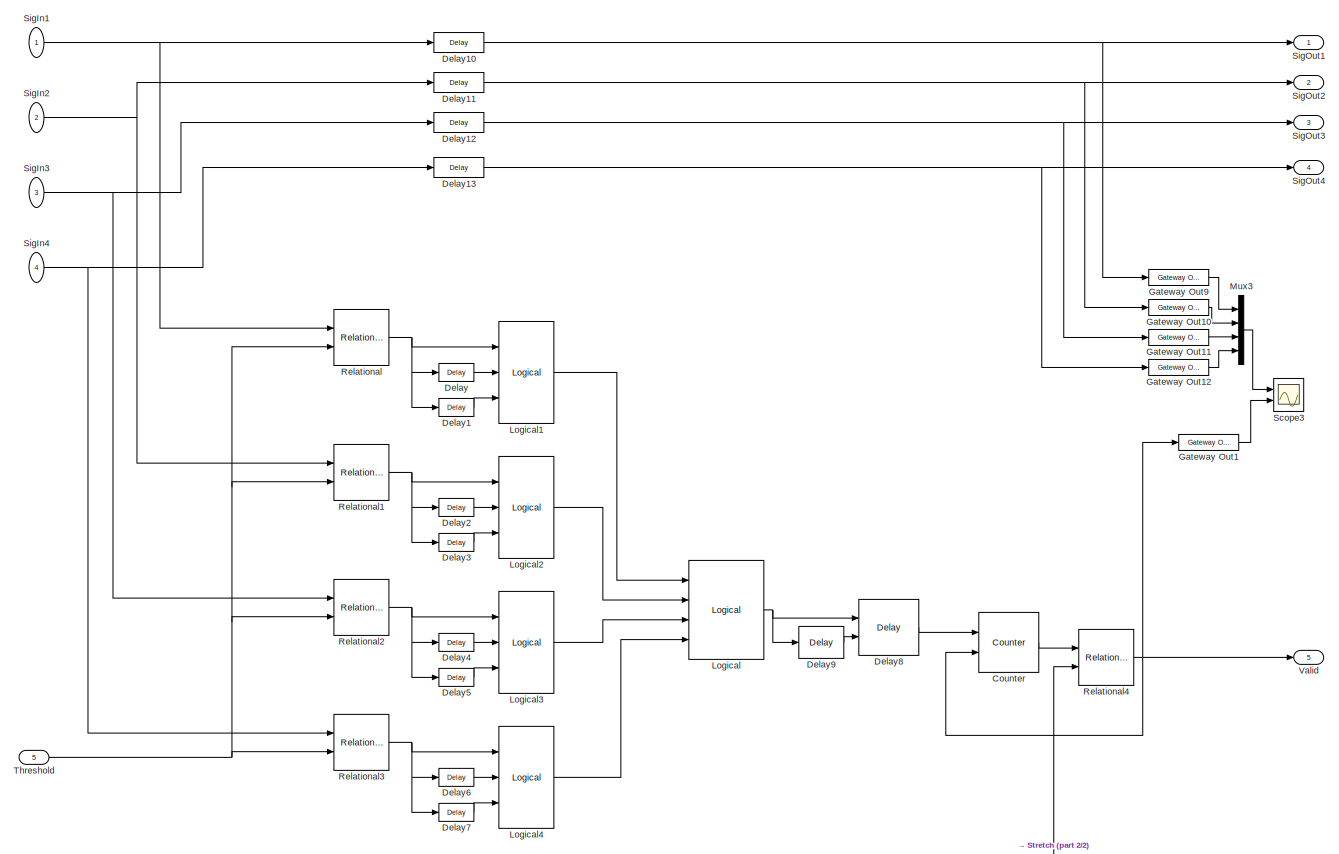
[diagram: SigDetect_10d - part 1/2, most of the canvas]
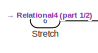
[diagram: SigDetect_10d - part 2/2, bottom left region]
BLOCK [SubSystem] SigDetect_10d
  FunctionWithSeparateData = off
  MaskHideContents = off
  MinAlgLoopOccurrences = off
  Opaque = off
  Ports = [6, 5]
  PropExecContextOutsideSubsystem = off
  RTWSystemCode = Auto
  RequestExecContextInheritance = off
BLOCK [Reference] SigDetect_10d/Counter  REF=xbsIndex_r4/Counter
  Ports = [2, 1]
  SourceBlock = xbsIndex_r4/Counter
  SourceType = Xilinx Counter Block
  arith_type = Unsigned
  bin_pt = 0
  block_type = counter
  cnt_by_val = 1
  cnt_to = Inf
  cnt_type = Free Running
  dbl_ovrd = off
  en = on
  explicit_period = on
  has_advanced_control = 0
  implementation = Fabric
  infoedit = Hardware notes: Free running counters are the least expensive in hardware.  A count limited counter is implemented by combining a counter with a comparator.
  load_pin = off
  n_bits = 32
  operation = Up
  period = 1
  rst = on
  sg_icon_stat = 60,60,2,1,white,blue,0,ae3608d6,right,,[ ],[ ]
  sg_mask_display = fprintf('','COMMENT: begin icon graphics');\npatch([0 60 60 0 0 ],[0 0 60 60 0 ],[0.77 0.82 0.91 ]);\nplot([0 60 60 0 0 ],[0 0 60 60 0 ]);\npatch([12.2 23.76 31.76 39.76 47.76 31.76 20.2 12.2 ],[38.88 38.88 46.88 38.88 46.88 46.88 46.88 38.88 ],[1 1 1 ]);\npatch([20.2 31.76 23.76 12.2 20.2 ],[30.88 30.88 38.88 38.88 30.88 ],[0.931 0.946 0.973 ]);\npatch([12.2 23.76 31.76 20.2 12.2 ],[22.88 22.88 30.88 ...<+408ch>
  sggui_pos = -1,-1,-1,-1
  start_count = 0
  use_behavioral_HDL = off
  xl_area = [0,0,0,0,0,0,0]
  xl_use_area = off
BLOCK [Reference] SigDetect_10d/Delay  REF=xbsIndex_r4/Delay
  Ports = [1, 1]
  SourceBlock = xbsIndex_r4/Delay
  SourceType = Xilinx Delay Block
  block_type = delay
  dbl_ovrd = off
  en = off
  has_advanced_control = 0
  infoedit = Hardware notes: A delay line is a chain, each link of which is an SRL16 followed by a flip-flop.
  infoeditControl = Selection of Reset will increase slice count due to use of real FFs and instead of SRLs
  latency = 1
  reg_retiming = off
  rst = off
  sg_icon_stat = 35,18,1,1,white,blue,0,07b98262,right,,[ ],[ ]
  sg_mask_display = fprintf('','COMMENT: begin icon graphics');\npatch([0 35 35 0 0 ],[0 0 18 18 0 ],[0.77 0.82 0.91 ]);\nplot([0 35 35 0 0 ],[0 0 18 18 0 ]);\npatch([12.55 15.44 17.44 19.44 21.44 17.44 14.55 12.55 ],[11.22 11.22 13.22 11.22 13.22 13.22 13.22 11.22 ],[1 1 1 ]);\npatch([14.55 17.44 15.44 12.55 14.55 ],[9.22 9.22 11.22 11.22 9.22 ],[0.931 0.946 0.973 ]);\npatch([12.55 15.44 17.44 14.55 12.55 ],[7.22 7.22 9....<+305ch>  <repeated x8 — deduplicated; at blocks: Delay, Delay1, Delay2, Delay3, Delay4, Delay5, Delay6, Delay7>
  sggui_pos = -1,-1,-1,-1
  xl_area = [0,0,0,0,0,0,0]
  xl_use_area = off
BLOCK [Reference] SigDetect_10d/Delay1  REF=xbsIndex_r4/Delay
  Ports = [1, 1]
  SourceBlock = xbsIndex_r4/Delay
  SourceType = Xilinx Delay Block
  block_type = delay
  dbl_ovrd = off
  en = off
  has_advanced_control = 0
  infoedit = Hardware notes: A delay line is a chain, each link of which is an SRL16 followed by a flip-flop.
  infoeditControl = Selection of Reset will increase slice count due to use of real FFs and instead of SRLs
  latency = 2
  reg_retiming = off
  rst = off
  sg_icon_stat = 35,18,1,1,white,blue,0,85ce9542,right,,[ ],[ ]
  sggui_pos = -1,-1,-1,-1
  xl_area = [0,0,0,0,0,0,0]
  xl_use_area = off
BLOCK [Reference] SigDetect_10d/Delay10  REF=xbsIndex_r4/Delay
  Ports = [1, 1]
  SourceBlock = xbsIndex_r4/Delay
  SourceType = Xilinx Delay Block
  block_type = delay
  dbl_ovrd = off
  en = off
  has_advanced_control = 0
  infoedit = Hardware notes: A delay line is a chain, each link of which is an SRL16 followed by a flip-flop.
  infoeditControl = Selection of Reset will increase slice count due to use of real FFs and instead of SRLs
  latency = 10
  reg_retiming = off
  rst = off
  sg_icon_stat = 50,20,1,1,white,blue,0,8c471295,right,,[ ],[ ]
  sg_mask_display = fprintf('','COMMENT: begin icon graphics');\npatch([0 50 50 0 0 ],[0 0 20 20 0 ],[0.77 0.82 0.91 ]);\nplot([0 50 50 0 0 ],[0 0 20 20 0 ]);\npatch([20.55 23.44 25.44 27.44 29.44 25.44 22.55 20.55 ],[12.22 12.22 14.22 12.22 14.22 14.22 14.22 12.22 ],[1 1 1 ]);\npatch([22.55 25.44 23.44 20.55 22.55 ],[10.22 10.22 12.22 12.22 10.22 ],[0.931 0.946 0.973 ]);\npatch([20.55 23.44 25.44 22.55 20.55 ],[8.22 8.22...<+311ch>  <repeated x4 — deduplicated; at blocks: Delay10, Delay11, Delay12, Delay13>
  sggui_pos = -1,-1,-1,-1
  xl_area = [0,0,0,0,0,0,0]
  xl_use_area = off
BLOCK [Reference] SigDetect_10d/Delay11  REF=xbsIndex_r4/Delay
  Ports = [1, 1]
  SourceBlock = xbsIndex_r4/Delay
  SourceType = Xilinx Delay Block
  block_type = delay
  dbl_ovrd = off
  en = off
  has_advanced_control = 0
  infoedit = Hardware notes: A delay line is a chain, each link of which is an SRL16 followed by a flip-flop.
  infoeditControl = Selection of Reset will increase slice count due to use of real FFs and instead of SRLs
  latency = 10
  reg_retiming = off
  rst = off
  sg_icon_stat = 50,20,1,1,white,blue,0,8c471295,right,,[ ],[ ]
  sggui_pos = -1,-1,-1,-1
  xl_area = [0,0,0,0,0,0,0]
  xl_use_area = off
BLOCK [Reference] SigDetect_10d/Delay12  REF=xbsIndex_r4/Delay
  Ports = [1, 1]
  SourceBlock = xbsIndex_r4/Delay
  SourceType = Xilinx Delay Block
  block_type = delay
  dbl_ovrd = off
  en = off
  has_advanced_control = 0
  infoedit = Hardware notes: A delay line is a chain, each link of which is an SRL16 followed by a flip-flop.
  infoeditControl = Selection of Reset will increase slice count due to use of real FFs and instead of SRLs
  latency = 10
  reg_retiming = off
  rst = off
  sg_icon_stat = 50,20,1,1,white,blue,0,8c471295,right,,[ ],[ ]
  sggui_pos = -1,-1,-1,-1
  xl_area = [0,0,0,0,0,0,0]
  xl_use_area = off
BLOCK [Reference] SigDetect_10d/Delay13  REF=xbsIndex_r4/Delay
  Ports = [1, 1]
  SourceBlock = xbsIndex_r4/Delay
  SourceType = Xilinx Delay Block
  block_type = delay
  dbl_ovrd = off
  en = off
  has_advanced_control = 0
  infoedit = Hardware notes: A delay line is a chain, each link of which is an SRL16 followed by a flip-flop.
  infoeditControl = Selection of Reset will increase slice count due to use of real FFs and instead of SRLs
  latency = 10
  reg_retiming = off
  rst = off
  sg_icon_stat = 50,20,1,1,white,blue,0,8c471295,right,,[ ],[ ]
  sggui_pos = -1,-1,-1,-1
  xl_area = [0,0,0,0,0,0,0]
  xl_use_area = off
BLOCK [Reference] SigDetect_10d/Delay2  REF=xbsIndex_r4/Delay
  Ports = [1, 1]
  SourceBlock = xbsIndex_r4/Delay
  SourceType = Xilinx Delay Block
  block_type = delay
  dbl_ovrd = off
  en = off
  has_advanced_control = 0
  infoedit = Hardware notes: A delay line is a chain, each link of which is an SRL16 followed by a flip-flop.
  infoeditControl = Selection of Reset will increase slice count due to use of real FFs and instead of SRLs
  latency = 1
  reg_retiming = off
  rst = off
  sg_icon_stat = 35,18,1,1,white,blue,0,07b98262,right,,[ ],[ ]
  sggui_pos = -1,-1,-1,-1
  xl_area = [0,0,0,0,0,0,0]
  xl_use_area = off
BLOCK [Reference] SigDetect_10d/Delay3  REF=xbsIndex_r4/Delay
  Ports = [1, 1]
  SourceBlock = xbsIndex_r4/Delay
  SourceType = Xilinx Delay Block
  block_type = delay
  dbl_ovrd = off
  en = off
  has_advanced_control = 0
  infoedit = Hardware notes: A delay line is a chain, each link of which is an SRL16 followed by a flip-flop.
  infoeditControl = Selection of Reset will increase slice count due to use of real FFs and instead of SRLs
  latency = 2
  reg_retiming = off
  rst = off
  sg_icon_stat = 35,18,1,1,white,blue,0,85ce9542,right,,[ ],[ ]
  sggui_pos = -1,-1,-1,-1
  xl_area = [0,0,0,0,0,0,0]
  xl_use_area = off
BLOCK [Reference] SigDetect_10d/Delay4  REF=xbsIndex_r4/Delay
  Ports = [1, 1]
  SourceBlock = xbsIndex_r4/Delay
  SourceType = Xilinx Delay Block
  block_type = delay
  dbl_ovrd = off
  en = off
  has_advanced_control = 0
  infoedit = Hardware notes: A delay line is a chain, each link of which is an SRL16 followed by a flip-flop.
  infoeditControl = Selection of Reset will increase slice count due to use of real FFs and instead of SRLs
  latency = 1
  reg_retiming = off
  rst = off
  sg_icon_stat = 35,18,1,1,white,blue,0,07b98262,right,,[ ],[ ]
  sggui_pos = -1,-1,-1,-1
  xl_area = [0,0,0,0,0,0,0]
  xl_use_area = off
BLOCK [Reference] SigDetect_10d/Delay5  REF=xbsIndex_r4/Delay
  Ports = [1, 1]
  SourceBlock = xbsIndex_r4/Delay
  SourceType = Xilinx Delay Block
  block_type = delay
  dbl_ovrd = off
  en = off
  has_advanced_control = 0
  infoedit = Hardware notes: A delay line is a chain, each link of which is an SRL16 followed by a flip-flop.
  infoeditControl = Selection of Reset will increase slice count due to use of real FFs and instead of SRLs
  latency = 2
  reg_retiming = off
  rst = off
  sg_icon_stat = 35,18,1,1,white,blue,0,85ce9542,right,,[ ],[ ]
  sggui_pos = -1,-1,-1,-1
  xl_area = [0,0,0,0,0,0,0]
  xl_use_area = off
BLOCK [Reference] SigDetect_10d/Delay6  REF=xbsIndex_r4/Delay
  Ports = [1, 1]
  SourceBlock = xbsIndex_r4/Delay
  SourceType = Xilinx Delay Block
  block_type = delay
  dbl_ovrd = off
  en = off
  has_advanced_control = 0
  infoedit = Hardware notes: A delay line is a chain, each link of which is an SRL16 followed by a flip-flop.
  infoeditControl = Selection of Reset will increase slice count due to use of real FFs and instead of SRLs
  latency = 1
  reg_retiming = off
  rst = off
  sg_icon_stat = 35,18,1,1,white,blue,0,07b98262,right,,[ ],[ ]
  sggui_pos = -1,-1,-1,-1
  xl_area = [0,0,0,0,0,0,0]
  xl_use_area = off
BLOCK [Reference] SigDetect_10d/Delay7  REF=xbsIndex_r4/Delay
  Ports = [1, 1]
  SourceBlock = xbsIndex_r4/Delay
  SourceType = Xilinx Delay Block
  block_type = delay
  dbl_ovrd = off
  en = off
  has_advanced_control = 0
  infoedit = Hardware notes: A delay line is a chain, each link of which is an SRL16 followed by a flip-flop.
  infoeditControl = Selection of Reset will increase slice count due to use of real FFs and instead of SRLs
  latency = 2
  reg_retiming = off
  rst = off
  sg_icon_stat = 35,18,1,1,white,blue,0,85ce9542,right,,[ ],[ ]
  sggui_pos = -1,-1,-1,-1
  xl_area = [0,0,0,0,0,0,0]
  xl_use_area = off
BLOCK [Reference] SigDetect_10d/Delay8  REF=xbsIndex_r4/Delay
  Ports = [2, 1]
  SourceBlock = xbsIndex_r4/Delay
  SourceType = Xilinx Delay Block
  block_type = delay
  dbl_ovrd = off
  en = off
  has_advanced_control = 0
  infoedit = Hardware notes: A delay line is a chain, each link of which is an SRL16 followed by a flip-flop.
  infoeditControl = Selection of Reset will increase slice count due to use of real FFs and instead of SRLs
  latency = 1
  reg_retiming = off
  rst = on
  sg_icon_stat = 60,56,2,1,white,blue,0,c56fa9d5,right,,[ ],[ ]
  sggui_pos = -1,-1,-1,-1
  xl_area = [0,0,0,0,0,0,0]
  xl_use_area = off
BLOCK [Reference] SigDetect_10d/Delay9  REF=xbsIndex_r4/Delay
  Ports = [1, 1]
  SourceBlock = xbsIndex_r4/Delay
  SourceType = Xilinx Delay Block
  block_type = delay
  dbl_ovrd = off
  en = off
  has_advanced_control = 0
  infoedit = Hardware notes: A delay line is a chain, each link of which is an SRL16 followed by a flip-flop.
  infoeditControl = Selection of Reset will increase slice count due to use of real FFs and instead of SRLs
  latency = 1
  reg_retiming = off
  rst = off
  sg_icon_stat = 45,32,1,1,white,blue,0,07b98262,right,,[ ],[ ]
  sg_mask_display = fprintf('','COMMENT: begin icon graphics');\npatch([0 45 45 0 0 ],[0 0 32 32 0 ],[0.77 0.82 0.91 ]);\nplot([0 45 45 0 0 ],[0 0 32 32 0 ]);\npatch([13.1 18.88 22.88 26.88 30.88 22.88 17.1 13.1 ],[20.44 20.44 24.44 20.44 24.44 24.44 24.44 20.44 ],[1 1 1 ]);\npatch([17.1 22.88 18.88 13.1 17.1 ],[16.44 16.44 20.44 20.44 16.44 ],[0.931 0.946 0.973 ]);\npatch([13.1 18.88 22.88 17.1 13.1 ],[12.44 12.44 16.44 ...<+304ch>
  sggui_pos = -1,-1,-1,-1
  xl_area = [0,0,0,0,0,0,0]
  xl_use_area = off
BLOCK [Reference] SigDetect_10d/Gateway Out1  REF=xbsIndex_r4/Gateway Out
  DACChannel = '1'
  LOCs = {}
  Ports = [1, 1]
  SourceBlock = xbsIndex_r4/Gateway Out
  SourceType = Xilinx Gateway Out Block
  UseAsDAC = off
  block_type = gatewayout
  has_advanced_control = 0
  hdl_port = off
  inherit_from_input = off
  locs_specified = off
  sg_icon_stat = 60,16,1,1,white,grey,1,632ec840,right,,[ ],[ ]
  sggui_pos = -1,-1,-1,-1
  timing_constraint = None
  xl_area = [0,0,0,0,0,0,0]
  xl_use_area = off
BLOCK [Reference] SigDetect_10d/Gateway Out10  REF=xbsIndex_r4/Gateway Out
  DACChannel = '1'
  LOCs = {}
  Ports = [1, 1]
  SourceBlock = xbsIndex_r4/Gateway Out
  SourceType = Xilinx Gateway Out Block
  UseAsDAC = off
  block_type = gatewayout
  has_advanced_control = 0
  hdl_port = off
  inherit_from_input = off
  locs_specified = off
  sg_icon_stat = 60,16,1,1,white,grey,1,632ec840,right,,[ ],[ ]
  sggui_pos = -1,-1,-1,-1
  timing_constraint = None
  xl_area = [0,0,0,0,0,0,0]
  xl_use_area = off
BLOCK [Reference] SigDetect_10d/Gateway Out11  REF=xbsIndex_r4/Gateway Out
  DACChannel = '1'
  LOCs = {}
  Ports = [1, 1]
  SourceBlock = xbsIndex_r4/Gateway Out
  SourceType = Xilinx Gateway Out Block
  UseAsDAC = off
  block_type = gatewayout
  has_advanced_control = 0
  hdl_port = off
  inherit_from_input = off
  locs_specified = off
  sg_icon_stat = 60,16,1,1,white,grey,1,632ec840,right,,[ ],[ ]
  sggui_pos = -1,-1,-1,-1
  timing_constraint = None
  xl_area = [0,0,0,0,0,0,0]
  xl_use_area = off
BLOCK [Reference] SigDetect_10d/Gateway Out12  REF=xbsIndex_r4/Gateway Out
  DACChannel = '1'
  LOCs = {}
  Ports = [1, 1]
  SourceBlock = xbsIndex_r4/Gateway Out
  SourceType = Xilinx Gateway Out Block
  UseAsDAC = off
  block_type = gatewayout
  has_advanced_control = 0
  hdl_port = off
  inherit_from_input = off
  locs_specified = off
  sg_icon_stat = 60,16,1,1,white,grey,1,632ec840,right,,[ ],[ ]
  sggui_pos = -1,-1,-1,-1
  timing_constraint = None
  xl_area = [0,0,0,0,0,0,0]
  xl_use_area = off
BLOCK [Reference] SigDetect_10d/Gateway Out9  REF=xbsIndex_r4/Gateway Out
  DACChannel = '1'
  LOCs = {}
  Ports = [1, 1]
  SourceBlock = xbsIndex_r4/Gateway Out
  SourceType = Xilinx Gateway Out Block
  UseAsDAC = off
  block_type = gatewayout
  has_advanced_control = 0
  hdl_port = off
  inherit_from_input = off
  locs_specified = off
  sg_icon_stat = 60,16,1,1,white,grey,1,632ec840,right,,[ ],[ ]
  sggui_pos = -1,-1,-1,-1
  timing_constraint = None
  xl_area = [0,0,0,0,0,0,0]
  xl_use_area = off
BLOCK [Reference] SigDetect_10d/Logical  REF=xbsIndex_r4/Logical
  Ports = [4, 1]
  SourceBlock = xbsIndex_r4/Logical
  SourceType = Xilinx Logical Block Block
  align_bp = on
  arith_type = Unsigned
  bin_pt = 0
  block_type = logical
  dbl_ovrd = off
  en = off
  has_advanced_control = 0
  inputs = 4
  latency = 0
  logical_function = OR
  n_bits = 16
  precision = Full
  sg_icon_stat = 75,99,4,1,white,blue,0,4f3eee2e,right,,[ ],[ ]
  sg_mask_display = fprintf('','COMMENT: begin icon graphics');\npatch([0 75 75 0 0 ],[0 0 99 99 0 ],[0.77 0.82 0.91 ]);\nplot([0 75 75 0 0 ],[0 0 99 99 0 ]);\npatch([14.75 29.2 39.2 49.2 59.2 39.2 24.75 14.75 ],[60.1 60.1 70.1 60.1 70.1 70.1 70.1 60.1 ],[1 1 1 ]);\npatch([24.75 39.2 29.2 14.75 24.75 ],[50.1 50.1 60.1 60.1 50.1 ],[0.931 0.946 0.973 ]);\npatch([14.75 29.2 39.2 24.75 14.75 ],[40.1 40.1 50.1 50.1 40.1 ],[1 1...<+266ch>
  sggui_pos = -1,-1,-1,-1
  xl_area = [0,0,0,0,0,0,0]
  xl_use_area = off
BLOCK [Reference] SigDetect_10d/Logical1  REF=xbsIndex_r4/Logical
  Ports = [3, 1]
  SourceBlock = xbsIndex_r4/Logical
  SourceType = Xilinx Logical Block Block
  align_bp = on
  arith_type = Unsigned
  bin_pt = 0
  block_type = logical
  dbl_ovrd = off
  en = off
  has_advanced_control = 0
  inputs = 3
  latency = 0
  logical_function = AND
  n_bits = 16
  precision = Full
  sg_icon_stat = 55,102,3,1,white,blue,0,98d76266,right,,[ ],[ ]
  sg_mask_display = fprintf('','COMMENT: begin icon graphics');\npatch([0 55 55 0 0 ],[0 0 102 102 0 ],[0.77 0.82 0.91 ]);\nplot([0 55 55 0 0 ],[0 0 102 102 0 ]);\npatch([11.425 21.54 28.54 35.54 42.54 28.54 18.425 11.425 ],[58.77 58.77 65.77 58.77 65.77 65.77 65.77 58.77 ],[1 1 1 ]);\npatch([18.425 28.54 21.54 11.425 18.425 ],[51.77 51.77 58.77 58.77 51.77 ],[0.931 0.946 0.973 ]);\npatch([11.425 21.54 28.54 18.425 11.425...<+320ch>  <repeated x4 — deduplicated; at blocks: Logical1, Logical2, Logical3, Logical4>
  sggui_pos = -1,-1,-1,-1
  xl_area = [0,0,0,0,0,0,0]
  xl_use_area = off
BLOCK [Reference] SigDetect_10d/Logical2  REF=xbsIndex_r4/Logical
  Ports = [3, 1]
  SourceBlock = xbsIndex_r4/Logical
  SourceType = Xilinx Logical Block Block
  align_bp = on
  arith_type = Unsigned
  bin_pt = 0
  block_type = logical
  dbl_ovrd = off
  en = off
  has_advanced_control = 0
  inputs = 3
  latency = 0
  logical_function = AND
  n_bits = 16
  precision = Full
  sg_icon_stat = 55,102,3,1,white,blue,0,98d76266,right,,[ ],[ ]
  sggui_pos = -1,-1,-1,-1
  xl_area = [0,0,0,0,0,0,0]
  xl_use_area = off
BLOCK [Reference] SigDetect_10d/Logical3  REF=xbsIndex_r4/Logical
  Ports = [3, 1]
  SourceBlock = xbsIndex_r4/Logical
  SourceType = Xilinx Logical Block Block
  align_bp = on
  arith_type = Unsigned
  bin_pt = 0
  block_type = logical
  dbl_ovrd = off
  en = off
  has_advanced_control = 0
  inputs = 3
  latency = 0
  logical_function = AND
  n_bits = 16
  precision = Full
  sg_icon_stat = 55,102,3,1,white,blue,0,98d76266,right,,[ ],[ ]
  sggui_pos = -1,-1,-1,-1
  xl_area = [0,0,0,0,0,0,0]
  xl_use_area = off
BLOCK [Reference] SigDetect_10d/Logical4  REF=xbsIndex_r4/Logical
  Ports = [3, 1]
  SourceBlock = xbsIndex_r4/Logical
  SourceType = Xilinx Logical Block Block
  align_bp = on
  arith_type = Unsigned
  bin_pt = 0
  block_type = logical
  dbl_ovrd = off
  en = off
  has_advanced_control = 0
  inputs = 3
  latency = 0
  logical_function = AND
  n_bits = 16
  precision = Full
  sg_icon_stat = 55,102,3,1,white,blue,0,98d76266,right,,[ ],[ ]
  sggui_pos = -1,-1,-1,-1
  xl_area = [0,0,0,0,0,0,0]
  xl_use_area = off
BLOCK [Mux] SigDetect_10d/Mux3
  DisplayOption = bar
  Ports = [4, 1]
BLOCK [Reference] SigDetect_10d/Relational  REF=xbsIndex_r4/Relational
  Ports = [2, 1]
  SourceBlock = xbsIndex_r4/Relational
  SourceType = Xilinx Arithmetic Relational Operator Block
  block_type = relational
  dbl_ovrd = off
  en = off
  has_advanced_control = 0
  latency = 1
  mode = a>b
  sg_icon_stat = 55,56,2,1,white,blue,0,3049caaa,right,,[ ],[ ]
  sg_mask_display = fprintf('','COMMENT: begin icon graphics');\npatch([0 55 55 0 0 ],[0 0 56 56 0 ],[0.77 0.82 0.91 ]);\nplot([0 55 55 0 0 ],[0 0 56 56 0 ]);\npatch([11.425 21.54 28.54 35.54 42.54 28.54 18.425 11.425 ],[35.77 35.77 42.77 35.77 42.77 42.77 42.77 35.77 ],[1 1 1 ]);\npatch([18.425 28.54 21.54 11.425 18.425 ],[28.77 28.77 35.77 35.77 28.77 ],[0.931 0.946 0.973 ]);\npatch([11.425 21.54 28.54 18.425 11.425 ],[...<+517ch>  <repeated x5 — deduplicated; at blocks: Relational, Relational1, Relational2, Relational3, Relational4>
  sggui_pos = -1,-1,-1,-1
  xl_area = [0,0,0,0,0,0,0]
  xl_use_area = off
BLOCK [Reference] SigDetect_10d/Relational1  REF=xbsIndex_r4/Relational
  Ports = [2, 1]
  SourceBlock = xbsIndex_r4/Relational
  SourceType = Xilinx Arithmetic Relational Operator Block
  block_type = relational
  dbl_ovrd = off
  en = off
  has_advanced_control = 0
  latency = 1
  mode = a>b
  sg_icon_stat = 55,56,2,1,white,blue,0,3049caaa,right,,[ ],[ ]
  sggui_pos = -1,-1,-1,-1
  xl_area = [0,0,0,0,0,0,0]
  xl_use_area = off
BLOCK [Reference] SigDetect_10d/Relational2  REF=xbsIndex_r4/Relational
  Ports = [2, 1]
  SourceBlock = xbsIndex_r4/Relational
  SourceType = Xilinx Arithmetic Relational Operator Block
  block_type = relational
  dbl_ovrd = off
  en = off
  has_advanced_control = 0
  latency = 1
  mode = a>b
  sg_icon_stat = 55,56,2,1,white,blue,0,3049caaa,right,,[ ],[ ]
  sggui_pos = -1,-1,-1,-1
  xl_area = [0,0,0,0,0,0,0]
  xl_use_area = off
BLOCK [Reference] SigDetect_10d/Relational3  REF=xbsIndex_r4/Relational
  Ports = [2, 1]
  SourceBlock = xbsIndex_r4/Relational
  SourceType = Xilinx Arithmetic Relational Operator Block
  block_type = relational
  dbl_ovrd = off
  en = off
  has_advanced_control = 0
  latency = 1
  mode = a>b
  sg_icon_stat = 55,56,2,1,white,blue,0,3049caaa,right,,[ ],[ ]
  sggui_pos = -1,-1,-1,-1
  xl_area = [0,0,0,0,0,0,0]
  xl_use_area = off
BLOCK [Reference] SigDetect_10d/Relational4  REF=xbsIndex_r4/Relational
  Ports = [2, 1]
  SourceBlock = xbsIndex_r4/Relational
  SourceType = Xilinx Arithmetic Relational Operator Block
  block_type = relational
  dbl_ovrd = off
  en = off
  has_advanced_control = 0
  latency = 1
  mode = a<b
  sg_icon_stat = 55,56,2,1,white,blue,0,9a1f8f13,right,,[ ],[ ]
  sggui_pos = -1,-1,-1,-1
  xl_area = [0,0,0,0,0,0,0]
  xl_use_area = off
BLOCK [Scope] SigDetect_10d/Scope3
  DataFormat = StructureWithTime
  Floating = off
  LimitDataPoints = off
  NumInputPorts = 2
  Ports = [2]
  SampleTime = 0
  SaveName = ScopeData4
  ShowLegends = off
  YMax = 5~5
  YMin = -5~-5
  ZoomMode = xonly
BLOCK [Inport] SigDetect_10d/SigIn1
  IconDisplay = Port number
BLOCK [Inport] SigDetect_10d/SigIn2
  IconDisplay = Port number
  Port = 2
BLOCK [Inport] SigDetect_10d/SigIn3
  IconDisplay = Port number
  Port = 3
BLOCK [Inport] SigDetect_10d/SigIn4
  IconDisplay = Port number
  Port = 4
BLOCK [Outport] SigDetect_10d/SigOut1
  IconDisplay = Port number
BLOCK [Outport] SigDetect_10d/SigOut2
  IconDisplay = Port number
  Port = 2
BLOCK [Outport] SigDetect_10d/SigOut3
  IconDisplay = Port number
  Port = 3
BLOCK [Outport] SigDetect_10d/SigOut4
  IconDisplay = Port number
  Port = 4
BLOCK [Inport] SigDetect_10d/Stretch
  IconDisplay = Port number
  Port = 6
BLOCK [Inport] SigDetect_10d/Threshold
  IconDisplay = Port number
  Port = 5
BLOCK [Outport] SigDetect_10d/Valid
  IconDisplay = Port number
  Port = 5
BLOCK [SubSystem] SigMux_1d
  FunctionWithSeparateData = off
  MaskHideContents = off
  MinAlgLoopOccurrences = off
  Opaque = off
  Ports = [5, 4]
  PropExecContextOutsideSubsystem = off
  RTWSystemCode = Auto
  RequestExecContextInheritance = off
BLOCK [Reference] SigMux_1d/Counter  REF=xbsIndex_r4/Counter
  Ports = [0, 1]
  SourceBlock = xbsIndex_r4/Counter
  SourceType = Xilinx Counter Block
  arith_type = Signed  (2's comp)
  bin_pt = 0
  block_type = counter
  cnt_by_val = 1
  cnt_to = Inf
  cnt_type = Free Running
  dbl_ovrd = off
  en = off
  explicit_period = on
  has_advanced_control = 0
  implementation = Fabric
  infoedit = Hardware notes: Free running counters are the least expensive in hardware.  A count limited counter is implemented by combining a counter with a comparator.
  load_pin = off
  n_bits = 11
  operation = Up
  period = 1
  rst = off
  sg_icon_stat = 50,30,0,1,white,blue,0,7ac47ef5,right,,[ ],[ ]
  sg_mask_display = fprintf('','COMMENT: begin icon graphics');\npatch([0 50 50 0 0 ],[0 0 30 30 0 ],[0.77 0.82 0.91 ]);\nplot([0 50 50 0 0 ],[0 0 30 30 0 ]);\npatch([16.1 21.88 25.88 29.88 33.88 25.88 20.1 16.1 ],[19.44 19.44 23.44 19.44 23.44 23.44 23.44 19.44 ],[1 1 1 ]);\npatch([20.1 25.88 21.88 16.1 20.1 ],[15.44 15.44 19.44 19.44 15.44 ],[0.931 0.946 0.973 ]);\npatch([16.1 21.88 25.88 20.1 16.1 ],[11.44 11.44 15.44 ...<+317ch>
  sggui_pos = -1,-1,-1,-1
  start_count = 0
  use_behavioral_HDL = off
  xl_area = [0,0,0,0,0,0,0]
  xl_use_area = off
BLOCK [Inport] SigMux_1d/In1
  IconDisplay = Port number
BLOCK [Inport] SigMux_1d/In2
  IconDisplay = Port number
  Port = 2
BLOCK [Inport] SigMux_1d/In3
  IconDisplay = Port number
  Port = 3
BLOCK [Inport] SigMux_1d/In4
  IconDisplay = Port number
  Port = 4
BLOCK [Inport] SigMux_1d/In5
  IconDisplay = Port number
  Port = 5
BLOCK [Reference] SigMux_1d/Mux1  REF=xbsIndex_r4/Mux
  Ports = [3, 1]
  SourceBlock = xbsIndex_r4/Mux
  SourceType = Xilinx Bus Multiplexer Block
  arith_type = Unsigned
  bin_pt = 14
  block_type = mux
  dbl_ovrd = off
  en = off
  has_advanced_control = 0
  inputs = 2
  latency = 1
  n_bits = 16
  overflow = Wrap
  precision = Full
  quantization = Truncate
  sg_icon_stat = 50,64,3,1,white,blue,3,a150fb03,right,,[ ],[ ]
  sg_mask_display = fprintf('','COMMENT: begin icon graphics');\npatch([0 50 50 0 0 ],[0 9.14286 54.8571 64 0 ],[0.77 0.82 0.91 ]);\nplot([0 50 50 0 0 ],[0 9.14286 54.8571 64 0 ]);\npatch([9.425 19.54 26.54 33.54 40.54 26.54 16.425 9.425 ],[39.77 39.77 46.77 39.77 46.77 46.77 46.77 39.77 ],[1 1 1 ]);\npatch([16.425 26.54 19.54 9.425 16.425 ],[32.77 32.77 39.77 39.77 32.77 ],[0.931 0.946 0.973 ]);\npatch([9.425 19.54 26.54...<+484ch>  <repeated x4 — deduplicated; at blocks: Mux1, Mux2, Mux3, Mux4>
  sggui_pos = -1,-1,-1,-1
  xl_area = [0,0,0,0,0,0,0]
  xl_use_area = off
BLOCK [Reference] SigMux_1d/Mux2  REF=xbsIndex_r4/Mux
  Ports = [3, 1]
  SourceBlock = xbsIndex_r4/Mux
  SourceType = Xilinx Bus Multiplexer Block
  arith_type = Unsigned
  bin_pt = 14
  block_type = mux
  dbl_ovrd = off
  en = off
  has_advanced_control = 0
  inputs = 2
  latency = 1
  n_bits = 16
  overflow = Wrap
  precision = Full
  quantization = Truncate
  sg_icon_stat = 50,64,3,1,white,blue,3,a150fb03,right,,[ ],[ ]
  sggui_pos = -1,-1,-1,-1
  xl_area = [0,0,0,0,0,0,0]
  xl_use_area = off
BLOCK [Reference] SigMux_1d/Mux3  REF=xbsIndex_r4/Mux
  Ports = [3, 1]
  SourceBlock = xbsIndex_r4/Mux
  SourceType = Xilinx Bus Multiplexer Block
  arith_type = Unsigned
  bin_pt = 14
  block_type = mux
  dbl_ovrd = off
  en = off
  has_advanced_control = 0
  inputs = 2
  latency = 1
  n_bits = 16
  overflow = Wrap
  precision = Full
  quantization = Truncate
  sg_icon_stat = 50,64,3,1,white,blue,3,a150fb03,right,,[ ],[ ]
  sggui_pos = -1,-1,-1,-1
  xl_area = [0,0,0,0,0,0,0]
  xl_use_area = off
BLOCK [Reference] SigMux_1d/Mux4  REF=xbsIndex_r4/Mux
  Ports = [3, 1]
  SourceBlock = xbsIndex_r4/Mux
  SourceType = Xilinx Bus Multiplexer Block
  arith_type = Unsigned
  bin_pt = 14
  block_type = mux
  dbl_ovrd = off
  en = off
  has_advanced_control = 0
  inputs = 2
  latency = 1
  n_bits = 16
  overflow = Wrap
  precision = Full
  quantization = Truncate
  sg_icon_stat = 50,64,3,1,white,blue,3,a150fb03,right,,[ ],[ ]
  sggui_pos = -1,-1,-1,-1
  xl_area = [0,0,0,0,0,0,0]
  xl_use_area = off
BLOCK [Outport] SigMux_1d/Out1
  IconDisplay = Port number
BLOCK [Outport] SigMux_1d/Out2
  IconDisplay = Port number
  Port = 2
BLOCK [Outport] SigMux_1d/Out3
  IconDisplay = Port number
  Port = 3
BLOCK [Outport] SigMux_1d/Out4
  IconDisplay = Port number
  Port = 4
BLOCK [SubSystem] SigSeparation1_1d
  FunctionWithSeparateData = off
  MaskHideContents = off
  MinAlgLoopOccurrences = off
  Opaque = off
  Ports = [5, 4]
  PropExecContextOutsideSubsystem = off
  RTWSystemCode = Auto
  RequestExecContextInheritance = off
BLOCK [Reference] SigSeparation1_1d/Concat  REF=xbsIndex_r4/Concat
  Ports = [2, 1]
  SourceBlock = xbsIndex_r4/Concat
  SourceType = Xilinx Bus Concatenator Block
  block_type = concat
  dbl_ovrd = off
  has_advanced_control = 0
  infoedit = Concatenates two or more inputs.  Output will be cast to an unsigned value with the binary point at zero.
  num_inputs = 2
  sg_icon_stat = 60,60,2,1,white,blue,0,16398980,right,,[ ],[ ]
  sg_mask_display = fprintf('','COMMENT: begin icon graphics');\npatch([0 60 60 0 0 ],[0 0 60 60 0 ],[0.77 0.82 0.91 ]);\nplot([0 60 60 0 0 ],[0 0 60 60 0 ]);\npatch([12.2 23.76 31.76 39.76 47.76 31.76 20.2 12.2 ],[38.88 38.88 46.88 38.88 46.88 46.88 46.88 38.88 ],[1 1 1 ]);\npatch([20.2 31.76 23.76 12.2 20.2 ],[30.88 30.88 38.88 38.88 30.88 ],[0.931 0.946 0.973 ]);\npatch([12.2 23.76 31.76 20.2 12.2 ],[22.88 22.88 30.88 ...<+402ch>  <repeated x4 — deduplicated; at blocks: Concat, Concat1, Concat2, Concat3>
  sggui_pos = 1396,25,328,127
BLOCK [Reference] SigSeparation1_1d/Concat1  REF=xbsIndex_r4/Concat
  Ports = [2, 1]
  SourceBlock = xbsIndex_r4/Concat
  SourceType = Xilinx Bus Concatenator Block
  block_type = concat
  dbl_ovrd = off
  has_advanced_control = 0
  infoedit = Concatenates two or more inputs.  Output will be cast to an unsigned value with the binary point at zero.
  num_inputs = 2
  sg_icon_stat = 60,60,2,1,white,blue,0,16398980,right,,[ ],[ ]
  sggui_pos = -1,-1,-1,-1
BLOCK [Reference] SigSeparation1_1d/Concat2  REF=xbsIndex_r4/Concat
  Ports = [2, 1]
  SourceBlock = xbsIndex_r4/Concat
  SourceType = Xilinx Bus Concatenator Block
  block_type = concat
  dbl_ovrd = off
  has_advanced_control = 0
  infoedit = Concatenates two or more inputs.  Output will be cast to an unsigned value with the binary point at zero.
  num_inputs = 2
  sg_icon_stat = 60,60,2,1,white,blue,0,16398980,right,,[ ],[ ]
  sggui_pos = -1,-1,-1,-1
BLOCK [Reference] SigSeparation1_1d/Concat3  REF=xbsIndex_r4/Concat
  Ports = [2, 1]
  SourceBlock = xbsIndex_r4/Concat
  SourceType = Xilinx Bus Concatenator Block
  block_type = concat
  dbl_ovrd = off
  has_advanced_control = 0
  infoedit = Concatenates two or more inputs.  Output will be cast to an unsigned value with the binary point at zero.
  num_inputs = 2
  sg_icon_stat = 60,60,2,1,white,blue,0,16398980,right,,[ ],[ ]
  sggui_pos = -1,-1,-1,-1
BLOCK [Reference] SigSeparation1_1d/Convert  REF=xbsIndex_r4/Convert
  Ports = [1, 1]
  SourceBlock = xbsIndex_r4/Convert
  SourceType = Xilinx Type Converter Block
  arith_type = Unsigned
  bin_pt = 0
  block_type = convert
  dbl_ovrd = off
  en = off
  exp_bits = 8
  float_type = Single
  fraction_bits = 24
  gui_display_data_type = Fixed-point
  has_advanced_control = 0
  infoedit = Hardware notes: rounding and saturating require hardware resources; truncating and wrapping do not.
  latency = 1
  n_bits = 14
  overflow = Wrap
  pipeline = off
  quantization = Round  (unbiased: +/- Inf)
  sg_icon_stat = 45,30,1,1,white,blue,0,0c6bad53,right,,[ ],[ ]
  sggui_pos = -1,-1,-1,-1
  xl_area = [0,0,0,0,0,0,0]
  xl_use_area = off
BLOCK [Reference] SigSeparation1_1d/Convert1  REF=xbsIndex_r4/Convert
  Ports = [1, 1]
  SourceBlock = xbsIndex_r4/Convert
  SourceType = Xilinx Type Converter Block
  arith_type = Unsigned
  bin_pt = 0
  block_type = convert
  dbl_ovrd = off
  en = off
  exp_bits = 8
  float_type = Single
  fraction_bits = 24
  gui_display_data_type = Fixed-point
  has_advanced_control = 0
  infoedit = Hardware notes: rounding and saturating require hardware resources; truncating and wrapping do not.
  latency = 1
  n_bits = 14
  overflow = Wrap
  pipeline = off
  quantization = Round  (unbiased: +/- Inf)
  sg_icon_stat = 45,30,1,1,white,blue,0,0c6bad53,right,,[ ],[ ]
  sggui_pos = 1441,37,508,547
  xl_area = [0,0,0,0,0,0,0]
  xl_use_area = off
BLOCK [Reference] SigSeparation1_1d/Convert2  REF=xbsIndex_r4/Convert
  Ports = [1, 1]
  SourceBlock = xbsIndex_r4/Convert
  SourceType = Xilinx Type Converter Block
  arith_type = Unsigned
  bin_pt = 0
  block_type = convert
  dbl_ovrd = off
  en = off
  exp_bits = 8
  float_type = Single
  fraction_bits = 24
  gui_display_data_type = Fixed-point
  has_advanced_control = 0
  infoedit = Hardware notes: rounding and saturating require hardware resources; truncating and wrapping do not.
  latency = 1
  n_bits = 14
  overflow = Wrap
  pipeline = off
  quantization = Round  (unbiased: +/- Inf)
  sg_icon_stat = 45,30,1,1,white,blue,0,0c6bad53,right,,[ ],[ ]
  sggui_pos = 1441,37,508,547
  xl_area = [0,0,0,0,0,0,0]
  xl_use_area = off
BLOCK [Reference] SigSeparation1_1d/Convert3  REF=xbsIndex_r4/Convert
  Ports = [1, 1]
  SourceBlock = xbsIndex_r4/Convert
  SourceType = Xilinx Type Converter Block
  arith_type = Unsigned
  bin_pt = 0
  block_type = convert
  dbl_ovrd = off
  en = off
  exp_bits = 8
  float_type = Single
  fraction_bits = 24
  gui_display_data_type = Fixed-point
  has_advanced_control = 0
  infoedit = Hardware notes: rounding and saturating require hardware resources; truncating and wrapping do not.
  latency = 1
  n_bits = 14
  overflow = Wrap
  pipeline = off
  quantization = Round  (unbiased: +/- Inf)
  sg_icon_stat = 45,30,1,1,white,blue,0,0c6bad53,right,,[ ],[ ]
  sggui_pos = 1441,37,508,547
  xl_area = [0,0,0,0,0,0,0]
  xl_use_area = off
BLOCK [Reference] SigSeparation1_1d/Counter  REF=xbsIndex_r4/Counter
  Ports = [1, 1]
  SourceBlock = xbsIndex_r4/Counter
  SourceType = Xilinx Counter Block
  arith_type = Unsigned
  bin_pt = 0
  block_type = counter
  cnt_by_val = 1
  cnt_to = Inf
  cnt_type = Free Running
  dbl_ovrd = off
  en = on
  explicit_period = on
  has_advanced_control = 0
  implementation = Fabric
  infoedit = Hardware notes: Free running counters are the least expensive in hardware.  A count limited counter is implemented by combining a counter with a comparator.
  load_pin = off
  n_bits = 2
  operation = Up
  period = 1
  rst = off
  sg_icon_stat = 60,60,1,1,white,blue,0,b089e9c5,right,,[ ],[ ]
  sg_mask_display = fprintf('','COMMENT: begin icon graphics');\npatch([0 60 60 0 0 ],[0 0 60 60 0 ],[0.77 0.82 0.91 ]);\nplot([0 60 60 0 0 ],[0 0 60 60 0 ]);\npatch([12.2 23.76 31.76 39.76 47.76 31.76 20.2 12.2 ],[38.88 38.88 46.88 38.88 46.88 46.88 46.88 38.88 ],[1 1 1 ]);\npatch([20.2 31.76 23.76 12.2 20.2 ],[30.88 30.88 38.88 38.88 30.88 ],[0.931 0.946 0.973 ]);\npatch([12.2 23.76 31.76 20.2 12.2 ],[22.88 22.88 30.88 ...<+364ch>
  sggui_pos = 1405,191,423,651
  start_count = 0
  use_behavioral_HDL = off
  xl_area = [0,0,0,0,0,0,0]
  xl_use_area = off
BLOCK [Reference] SigSeparation1_1d/Delay  REF=xbsIndex_r4/Delay
  Ports = [1, 1]
  SourceBlock = xbsIndex_r4/Delay
  SourceType = Xilinx Delay Block
  block_type = delay
  dbl_ovrd = off
  en = off
  has_advanced_control = 0
  infoedit = Hardware notes: A delay line is a chain, each link of which is an SRL16 followed by a flip-flop.
  infoeditControl = Selection of Reset will increase slice count due to use of real FFs and instead of SRLs
  latency = 1
  reg_retiming = off
  rst = off
  sg_icon_stat = 30,36,1,1,white,blue,0,07b98262,right,,[ ],[ ]
  sg_mask_display = fprintf('','COMMENT: begin icon graphics');\npatch([0 30 30 0 0 ],[0 0 36 36 0 ],[0.77 0.82 0.91 ]);\nplot([0 30 30 0 0 ],[0 0 36 36 0 ]);\npatch([6.1 11.88 15.88 19.88 23.88 15.88 10.1 6.1 ],[22.44 22.44 26.44 22.44 26.44 26.44 26.44 22.44 ],[1 1 1 ]);\npatch([10.1 15.88 11.88 6.1 10.1 ],[18.44 18.44 22.44 22.44 18.44 ],[0.931 0.946 0.973 ]);\npatch([6.1 11.88 15.88 10.1 6.1 ],[14.44 14.44 18.44 18.44...<+302ch>
  sggui_pos = -1,-1,-1,-1
  xl_area = [0,0,0,0,0,0,0]
  xl_use_area = off
BLOCK [Reference] SigSeparation1_1d/Delay1  REF=xbsIndex_r4/Delay
  Ports = [1, 1]
  SourceBlock = xbsIndex_r4/Delay
  SourceType = Xilinx Delay Block
  block_type = delay
  dbl_ovrd = off
  en = off
  has_advanced_control = 0
  infoedit = Hardware notes: A delay line is a chain, each link of which is an SRL16 followed by a flip-flop.
  infoeditControl = Selection of Reset will increase slice count due to use of real FFs and instead of SRLs
  latency = 0
  reg_retiming = off
  rst = off
  sg_icon_stat = 30,36,1,1,white,blue,0,24450e6f,right,,[ ],[ ]
  sg_mask_display = fprintf('','COMMENT: begin icon graphics');\npatch([0 30 30 0 0 ],[0 0 36 36 0 ],[0.77 0.82 0.91 ]);\nplot([0 30 30 0 0 ],[0 0 36 36 0 ]);\npatch([6.1 11.88 15.88 19.88 23.88 15.88 10.1 6.1 ],[22.44 22.44 26.44 22.44 26.44 26.44 26.44 22.44 ],[1 1 1 ]);\npatch([10.1 15.88 11.88 6.1 10.1 ],[18.44 18.44 22.44 22.44 18.44 ],[0.931 0.946 0.973 ]);\npatch([6.1 11.88 15.88 10.1 6.1 ],[14.44 14.44 18.44 18.44...<+302ch>
  sggui_pos = -1,-1,-1,-1
  xl_area = [0,0,0,0,0,0,0]
  xl_use_area = off
BLOCK [Reference] SigSeparation1_1d/Delay5  REF=xbsIndex_r4/Delay
  Ports = [2, 1]
  SourceBlock = xbsIndex_r4/Delay
  SourceType = Xilinx Delay Block
  block_type = delay
  dbl_ovrd = off
  en = off
  has_advanced_control = 0
  infoedit = Hardware notes: A delay line is a chain, each link of which is an SRL16 followed by a flip-flop.
  infoeditControl = Selection of Reset will increase slice count due to use of real FFs and instead of SRLs
  latency = 1
  reg_retiming = off
  rst = on
  sg_icon_stat = 60,56,2,1,white,blue,0,c56fa9d5,right,,[ ],[ ]
  sggui_pos = 1396,31,328,336
  xl_area = [0,0,0,0,0,0,0]
  xl_use_area = off
BLOCK [Inport] SigSeparation1_1d/En
  IconDisplay = Port number
  Port = 5
BLOCK [Reference] SigSeparation1_1d/Gateway Out18  REF=xbsIndex_r4/Gateway Out
  DACChannel = '1'
  LOCs = {}
  Ports = [1, 1]
  SourceBlock = xbsIndex_r4/Gateway Out
  SourceType = Xilinx Gateway Out Block
  UseAsDAC = off
  block_type = gatewayout
  has_advanced_control = 0
  hdl_port = off
  inherit_from_input = off
  locs_specified = off
  sg_icon_stat = 60,16,1,1,white,grey,1,632ec840,right,,[ ],[ ]
  sggui_pos = -1,-1,-1,-1
  timing_constraint = None
  xl_area = [0,0,0,0,0,0,0]
  xl_use_area = off
BLOCK [Reference] SigSeparation1_1d/Gateway Out19  REF=xbsIndex_r4/Gateway Out
  DACChannel = '1'
  LOCs = {}
  Ports = [1, 1]
  SourceBlock = xbsIndex_r4/Gateway Out
  SourceType = Xilinx Gateway Out Block
  UseAsDAC = off
  block_type = gatewayout
  has_advanced_control = 0
  hdl_port = off
  inherit_from_input = off
  locs_specified = off
  sg_icon_stat = 60,16,1,1,white,grey,1,632ec840,right,,[ ],[ ]
  sggui_pos = -1,-1,-1,-1
  timing_constraint = None
  xl_area = [0,0,0,0,0,0,0]
  xl_use_area = off
BLOCK [Reference] SigSeparation1_1d/Gateway Out20  REF=xbsIndex_r4/Gateway Out
  DACChannel = '1'
  LOCs = {}
  Ports = [1, 1]
  SourceBlock = xbsIndex_r4/Gateway Out
  SourceType = Xilinx Gateway Out Block
  UseAsDAC = off
  block_type = gatewayout
  has_advanced_control = 0
  hdl_port = off
  inherit_from_input = off
  locs_specified = off
  sg_icon_stat = 60,16,1,1,white,grey,1,632ec840,right,,[ ],[ ]
  sggui_pos = -1,-1,-1,-1
  timing_constraint = None
  xl_area = [0,0,0,0,0,0,0]
  xl_use_area = off
BLOCK [Reference] SigSeparation1_1d/Gateway Out21  REF=xbsIndex_r4/Gateway Out
  DACChannel = '1'
  LOCs = {}
  Ports = [1, 1]
  SourceBlock = xbsIndex_r4/Gateway Out
  SourceType = Xilinx Gateway Out Block
  UseAsDAC = off
  block_type = gatewayout
  has_advanced_control = 0
  hdl_port = off
  inherit_from_input = off
  locs_specified = off
  sg_icon_stat = 60,16,1,1,white,grey,1,632ec840,right,,[ ],[ ]
  sggui_pos = -1,-1,-1,-1
  timing_constraint = None
  xl_area = [0,0,0,0,0,0,0]
  xl_use_area = off
BLOCK [Reference] SigSeparation1_1d/Gateway Out22  REF=xbsIndex_r4/Gateway Out
  DACChannel = '1'
  LOCs = {}
  Ports = [1, 1]
  SourceBlock = xbsIndex_r4/Gateway Out
  SourceType = Xilinx Gateway Out Block
  UseAsDAC = off
  block_type = gatewayout
  has_advanced_control = 0
  hdl_port = off
  inherit_from_input = off
  locs_specified = off
  sg_icon_stat = 60,16,1,1,white,grey,1,632ec840,right,,[ ],[ ]
  sggui_pos = -1,-1,-1,-1
  timing_constraint = None
  xl_area = [0,0,0,0,0,0,0]
  xl_use_area = off
BLOCK [Reference] SigSeparation1_1d/Gateway Out23  REF=xbsIndex_r4/Gateway Out
  DACChannel = '1'
  LOCs = {}
  Ports = [1, 1]
  SourceBlock = xbsIndex_r4/Gateway Out
  SourceType = Xilinx Gateway Out Block
  UseAsDAC = off
  block_type = gatewayout
  has_advanced_control = 0
  hdl_port = off
  inherit_from_input = off
  locs_specified = off
  sg_icon_stat = 60,16,1,1,white,grey,1,632ec840,right,,[ ],[ ]
  sggui_pos = -1,-1,-1,-1
  timing_constraint = None
  xl_area = [0,0,0,0,0,0,0]
  xl_use_area = off
BLOCK [Mux] SigSeparation1_1d/Mux5
  DisplayOption = bar
  Ports = [4, 1]
BLOCK [Scope] SigSeparation1_1d/Scope5
  DataFormat = StructureWithTime
  Floating = off
  LimitDataPoints = off
  NumInputPorts = 3
  Ports = [3]
  SampleTime = 0
  SaveName = ScopeData6
  ShowLegends = off
  YMax = 5~5~5
  YMin = -5~-5~-5
  ZoomMode = xonly
BLOCK [Inport] SigSeparation1_1d/SigIn1
  IconDisplay = Port number
BLOCK [Inport] SigSeparation1_1d/SigIn2
  IconDisplay = Port number
  Port = 2
BLOCK [Inport] SigSeparation1_1d/SigIn3
  IconDisplay = Port number
  Port = 3
BLOCK [Inport] SigSeparation1_1d/SigIn4
  IconDisplay = Port number
  Port = 4
BLOCK [Outport] SigSeparation1_1d/SigOut1
  IconDisplay = Port number
BLOCK [Outport] SigSeparation1_1d/SigOut2
  IconDisplay = Port number
  Port = 2
BLOCK [Outport] SigSeparation1_1d/SigOut3
  IconDisplay = Port number
  Port = 3
BLOCK [Outport] SigSeparation1_1d/SigOut4
  IconDisplay = Port number
  Port = 4
LINE Constant1:1 -> Ctrl4_OFFSETrst30:1
LINE Constant2:1 -> Ctrl3_OFFSETen29:1
LINE Constant3:1 -> Ctrl2_Threshold13_0:1
LINE Constant4:1 -> Ctrl1_Stretch21_14:1
LINE Constant:1 -> Ctrl5_SIM31:1
LINE Ctrl1_Stretch21_14:1 -> SigDetect_10d:6
LINE Ctrl2_Threshold13_0:1 -> SigDetect_10d:5
LINE Ctrl3_OFFSETen29:1 -> OffsetCtrl_3d:6
LINE Ctrl4_OFFSETrst30:1 -> OffsetCtrl_3d:5
LINE Ctrl5_SIM31:1 -> SigMux_1d:5
LINE DataIn1:1 -> SigMux_1d:1
LINE DataIn2:1 -> SigMux_1d:2
LINE DataIn3:1 -> SigMux_1d:3
LINE DataIn4:1 -> SigMux_1d:4
NET Delay1:1 -> OffsetCtrl_1d:1, OffsetCtrl_3d:1
NET Delay2:1 -> OffsetCtrl_1d:2, OffsetCtrl_3d:2
NET Delay3:1 -> OffsetCtrl_1d:3, OffsetCtrl_3d:3
NET Delay4:1 -> OffsetCtrl_1d:4, OffsetCtrl_3d:4
LINE Gateway Out18:1 -> Mux5:2
LINE Gateway Out19:1 -> Mux5:3
LINE Gateway Out20:1 -> Mux5:4
LINE Gateway Out21:1 -> Mux5:1
LINE Gateway Out22:1 -> Scope5:2
LINE Input Signal/Add1:1 -> Input Signal/SigOut2:1
LINE Input Signal/Add2:1 -> Input Signal/SigOut3:1
LINE Input Signal/Add3:1 -> Input Signal/SigOut4:1
LINE Input Signal/Add:1 -> Input Signal/SigOut1:1
LINE Input Signal/Pulse Generator1:1 -> Input Signal/Transfer Fcn1:1
LINE Input Signal/Pulse Generator2:1 -> Input Signal/Transfer Fcn2:1
LINE Input Signal/Pulse Generator3:1 -> Input Signal/Transfer Fcn3:1
LINE Input Signal/Pulse Generator:1 -> Input Signal/Transfer Fcn:1
LINE Input Signal/Random Source1:1 -> Input Signal/Add1:2
LINE Input Signal/Random Source2:1 -> Input Signal/Add2:2
LINE Input Signal/Random Source3:1 -> Input Signal/Add3:2
LINE Input Signal/Random Source:1 -> Input Signal/Add:2
LINE Input Signal/Transfer Fcn1:1 -> Input Signal/Add1:1
LINE Input Signal/Transfer Fcn2:1 -> Input Signal/Add2:1
LINE Input Signal/Transfer Fcn3:1 -> Input Signal/Add3:1
LINE Input Signal/Transfer Fcn:1 -> Input Signal/Add:1
LINE Input Signal:1 -> DataIn1:1
LINE Input Signal:2 -> DataIn2:1
LINE Input Signal:3 -> DataIn3:1
LINE Input Signal:4 -> DataIn4:1
LINE Mux5:1 -> Scope5:1
LINE OffsetCtrl_1d/AddSub1:1 -> OffsetCtrl_1d/SigOut2:1
LINE OffsetCtrl_1d/AddSub2:1 -> OffsetCtrl_1d/SigOut3:1
LINE OffsetCtrl_1d/AddSub3:1 -> OffsetCtrl_1d/SigOut4:1
LINE OffsetCtrl_1d/AddSub:1 -> OffsetCtrl_1d/SigOut1:1
NET OffsetCtrl_1d/En:1 -> OffsetCtrl_1d/AddSub1:3, OffsetCtrl_1d/AddSub2:3, OffsetCtrl_1d/AddSub3:3, OffsetCtrl_1d/AddSub:3
LINE OffsetCtrl_1d/OffsetIn1:1 -> OffsetCtrl_1d/AddSub:2
LINE OffsetCtrl_1d/OffsetIn2:1 -> OffsetCtrl_1d/AddSub1:2
LINE OffsetCtrl_1d/OffsetIn3:1 -> OffsetCtrl_1d/AddSub2:2
LINE OffsetCtrl_1d/OffsetIn4:1 -> OffsetCtrl_1d/AddSub3:2
LINE OffsetCtrl_1d/SigIn1:1 -> OffsetCtrl_1d/AddSub:1
LINE OffsetCtrl_1d/SigIn2:1 -> OffsetCtrl_1d/AddSub1:1
LINE OffsetCtrl_1d/SigIn3:1 -> OffsetCtrl_1d/AddSub2:1
LINE OffsetCtrl_1d/SigIn4:1 -> OffsetCtrl_1d/AddSub3:1
LINE OffsetCtrl_1d:1 -> SigDetect_10d:1
LINE OffsetCtrl_1d:2 -> SigDetect_10d:2
LINE OffsetCtrl_1d:3 -> SigDetect_10d:3
LINE OffsetCtrl_1d:4 -> SigDetect_10d:4
LINE OffsetCtrl_3d/Accumulator1:1 -> OffsetCtrl_3d/Slice1:1
LINE OffsetCtrl_3d/Accumulator2:1 -> OffsetCtrl_3d/Slice2:1
LINE OffsetCtrl_3d/Accumulator3:1 -> OffsetCtrl_3d/Slice3:1
LINE OffsetCtrl_3d/Accumulator:1 -> OffsetCtrl_3d/Slice:1
LINE OffsetCtrl_3d/Convert1:1 -> OffsetCtrl_3d/Register1:1
LINE OffsetCtrl_3d/Convert2:1 -> OffsetCtrl_3d/Register2:1
LINE OffsetCtrl_3d/Convert3:1 -> OffsetCtrl_3d/Register3:1
NET OffsetCtrl_3d/Convert4:1 -> OffsetCtrl_3d/Gateway Out3:1, OffsetCtrl_3d/Inverter:1, OffsetCtrl_3d/Valid:1
LINE OffsetCtrl_3d/Convert:1 -> OffsetCtrl_3d/Register:1
NET OffsetCtrl_3d/Counter:1 -> OffsetCtrl_3d/Gateway Out1:1, OffsetCtrl_3d/Slice4:1
LINE OffsetCtrl_3d/Gateway Out1:1 -> OffsetCtrl_3d/Scope1:3
LINE OffsetCtrl_3d/Gateway Out2:1 -> OffsetCtrl_3d/Scope1:4
LINE OffsetCtrl_3d/Gateway Out3:1 -> OffsetCtrl_3d/Scope1:1
LINE OffsetCtrl_3d/Gateway Out7:1 -> OffsetCtrl_3d/Scope1:2
NET OffsetCtrl_3d/Inverter:1 -> OffsetCtrl_3d/Gateway Out7:1, OffsetCtrl_3d/Logical:2, OffsetCtrl_3d/Register1:3, OffsetCtrl_3d/Register2:3, OffsetCtrl_3d/Register3:3, OffsetCtrl_3d/Register:3
LINE OffsetCtrl_3d/Logical:1 -> OffsetCtrl_3d/Counter:2
LINE OffsetCtrl_3d/Register1:1 -> OffsetCtrl_3d/OffsetOut2:1
LINE OffsetCtrl_3d/Register2:1 -> OffsetCtrl_3d/OffsetOut3:1
LINE OffsetCtrl_3d/Register3:1 -> OffsetCtrl_3d/OffsetOut4:1
LINE OffsetCtrl_3d/Register:1 -> OffsetCtrl_3d/OffsetOut1:1
LINE OffsetCtrl_3d/SigIn1:1 -> OffsetCtrl_3d/Accumulator:1
LINE OffsetCtrl_3d/SigIn2:1 -> OffsetCtrl_3d/Accumulator1:1
LINE OffsetCtrl_3d/SigIn3:1 -> OffsetCtrl_3d/Accumulator2:1
LINE OffsetCtrl_3d/SigIn4:1 -> OffsetCtrl_3d/Accumulator3:1
LINE OffsetCtrl_3d/Slice1:1 -> OffsetCtrl_3d/Convert1:1
LINE OffsetCtrl_3d/Slice2:1 -> OffsetCtrl_3d/Convert2:1
LINE OffsetCtrl_3d/Slice3:1 -> OffsetCtrl_3d/Convert3:1
LINE OffsetCtrl_3d/Slice4:1 -> OffsetCtrl_3d/Convert4:1
LINE OffsetCtrl_3d/Slice:1 -> OffsetCtrl_3d/Convert:1
NET OffsetCtrl_3d/en:1 -> OffsetCtrl_3d/Accumulator1:3, OffsetCtrl_3d/Accumulator2:3, OffsetCtrl_3d/Accumulator3:3, OffsetCtrl_3d/Accumulator:3, OffsetCtrl_3d/Logical:1
NET OffsetCtrl_3d/rst:1 -> OffsetCtrl_3d/Accumulator1:2, OffsetCtrl_3d/Accumulator2:2, OffsetCtrl_3d/Accumulator3:2, OffsetCtrl_3d/Accumulator:2, OffsetCtrl_3d/Counter:1, OffsetCtrl_3d/Gateway Out2:1, OffsetCtrl_3d/Register1:2, OffsetCtrl_3d/Register2:2, OffsetCtrl_3d/Register3:2, OffsetCtrl_3d/Register:2
LINE OffsetCtrl_3d:1 -> OffsetCtrl_1d:5
LINE OffsetCtrl_3d:2 -> OffsetCtrl_1d:6
LINE OffsetCtrl_3d:3 -> OffsetCtrl_1d:7
LINE OffsetCtrl_3d:4 -> OffsetCtrl_1d:8
LINE OffsetCtrl_3d:5 -> OffsetCtrl_1d:9
LINE PeakSensing_3d/Delay1:1 -> PeakSensing_3d/Delay:2
NET PeakSensing_3d/Delay2:1 -> PeakSensing_3d/Gateway Out19:1, PeakSensing_3d/SigOut3:1
NET PeakSensing_3d/Delay3:1 -> PeakSensing_3d/Gateway Out20:1, PeakSensing_3d/SigOut4:1
NET PeakSensing_3d/Delay4:1 -> PeakSensing_3d/Gateway Out18:1, PeakSensing_3d/SigOut2:1
NET PeakSensing_3d/Delay5:1 -> PeakSensing_3d/Gateway Out21:1, PeakSensing_3d/SigOut1:1
NET PeakSensing_3d/Delay:1 -> PeakSensing_3d/Gateway Out1:1, PeakSensing_3d/Trig:1
LINE PeakSensing_3d/En:1 -> PeakSensing_3d/Inverter:1
LINE PeakSensing_3d/Gateway Out18:1 -> PeakSensing_3d/Mux5:2
LINE PeakSensing_3d/Gateway Out19:1 -> PeakSensing_3d/Mux5:3
LINE PeakSensing_3d/Gateway Out1:1 -> PeakSensing_3d/Scope5:3
LINE PeakSensing_3d/Gateway Out20:1 -> PeakSensing_3d/Mux5:4
LINE PeakSensing_3d/Gateway Out21:1 -> PeakSensing_3d/Mux5:1
LINE PeakSensing_3d/Gateway Out22:1 -> PeakSensing_3d/Scope5:2
NET PeakSensing_3d/Inverter:1 -> PeakSensing_3d/Delay1:1, PeakSensing_3d/Delay:1, PeakSensing_3d/Gateway Out22:1, PeakSensing_3d/Register1:2, PeakSensing_3d/Register2:2, PeakSensing_3d/Register3:2, PeakSensing_3d/Register:2
LINE PeakSensing_3d/Mux5:1 -> PeakSensing_3d/Scope5:1
NET PeakSensing_3d/Register1:1 -> PeakSensing_3d/Delay4:1, PeakSensing_3d/Relational1:2
NET PeakSensing_3d/Register2:1 -> PeakSensing_3d/Delay2:1, PeakSensing_3d/Relational2:2
NET PeakSensing_3d/Register3:1 -> PeakSensing_3d/Delay3:1, PeakSensing_3d/Relational3:2
NET PeakSensing_3d/Register:1 -> PeakSensing_3d/Delay5:1, PeakSensing_3d/Relational:2
LINE PeakSensing_3d/Relational1:1 -> PeakSensing_3d/Register1:3
LINE PeakSensing_3d/Relational2:1 -> PeakSensing_3d/Register2:3
LINE PeakSensing_3d/Relational3:1 -> PeakSensing_3d/Register3:3
LINE PeakSensing_3d/Relational:1 -> PeakSensing_3d/Register:3
NET PeakSensing_3d/SigIn1:1 -> PeakSensing_3d/Register:1, PeakSensing_3d/Relational:1
NET PeakSensing_3d/SigIn2:1 -> PeakSensing_3d/Register1:1, PeakSensing_3d/Relational1:1
NET PeakSensing_3d/SigIn3:1 -> PeakSensing_3d/Register2:1, PeakSensing_3d/Relational2:1
NET PeakSensing_3d/SigIn4:1 -> PeakSensing_3d/Register3:1, PeakSensing_3d/Relational3:1
NET PeakSensing_3d:1 -> Gateway Out21:1, PeakOut1:1
NET PeakSensing_3d:2 -> Gateway Out18:1, PeakOut2:1
NET PeakSensing_3d:3 -> Gateway Out19:1, PeakOut3:1
NET PeakSensing_3d:4 -> Gateway Out20:1, PeakOut4:1
NET PeakSensing_3d:5 -> Gateway Out22:1, PeakValid:1
LINE SigDetect_10d/Counter:1 -> SigDetect_10d/Relational4:1
NET SigDetect_10d/Delay10:1 -> SigDetect_10d/Gateway Out9:1, SigDetect_10d/SigOut1:1
NET SigDetect_10d/Delay11:1 -> SigDetect_10d/Gateway Out10:1, SigDetect_10d/SigOut2:1
NET SigDetect_10d/Delay12:1 -> SigDetect_10d/Gateway Out11:1, SigDetect_10d/SigOut3:1
NET SigDetect_10d/Delay13:1 -> SigDetect_10d/Gateway Out12:1, SigDetect_10d/SigOut4:1
LINE SigDetect_10d/Delay1:1 -> SigDetect_10d/Logical1:3
LINE SigDetect_10d/Delay2:1 -> SigDetect_10d/Logical2:2
LINE SigDetect_10d/Delay3:1 -> SigDetect_10d/Logical2:3
LINE SigDetect_10d/Delay4:1 -> SigDetect_10d/Logical3:2
LINE SigDetect_10d/Delay5:1 -> SigDetect_10d/Logical3:3
LINE SigDetect_10d/Delay6:1 -> SigDetect_10d/Logical4:2
LINE SigDetect_10d/Delay7:1 -> SigDetect_10d/Logical4:3
LINE SigDetect_10d/Delay8:1 -> SigDetect_10d/Counter:1
LINE SigDetect_10d/Delay9:1 -> SigDetect_10d/Delay8:2
LINE SigDetect_10d/Delay:1 -> SigDetect_10d/Logical1:2
LINE SigDetect_10d/Gateway Out10:1 -> SigDetect_10d/Mux3:2
LINE SigDetect_10d/Gateway Out11:1 -> SigDetect_10d/Mux3:3
LINE SigDetect_10d/Gateway Out12:1 -> SigDetect_10d/Mux3:4
LINE SigDetect_10d/Gateway Out1:1 -> SigDetect_10d/Scope3:2
LINE SigDetect_10d/Gateway Out9:1 -> SigDetect_10d/Mux3:1
LINE SigDetect_10d/Logical1:1 -> SigDetect_10d/Logical:1
LINE SigDetect_10d/Logical2:1 -> SigDetect_10d/Logical:2
LINE SigDetect_10d/Logical3:1 -> SigDetect_10d/Logical:3
LINE SigDetect_10d/Logical4:1 -> SigDetect_10d/Logical:4
NET SigDetect_10d/Logical:1 -> SigDetect_10d/Delay8:1, SigDetect_10d/Delay9:1
LINE SigDetect_10d/Mux3:1 -> SigDetect_10d/Scope3:1
NET SigDetect_10d/Relational1:1 -> SigDetect_10d/Delay2:1, SigDetect_10d/Delay3:1, SigDetect_10d/Logical2:1
NET SigDetect_10d/Relational2:1 -> SigDetect_10d/Delay4:1, SigDetect_10d/Delay5:1, SigDetect_10d/Logical3:1
NET SigDetect_10d/Relational3:1 -> SigDetect_10d/Delay6:1, SigDetect_10d/Delay7:1, SigDetect_10d/Logical4:1
NET SigDetect_10d/Relational4:1 -> SigDetect_10d/Counter:2, SigDetect_10d/Gateway Out1:1, SigDetect_10d/Valid:1
NET SigDetect_10d/Relational:1 -> SigDetect_10d/Delay1:1, SigDetect_10d/Delay:1, SigDetect_10d/Logical1:1
NET SigDetect_10d/SigIn1:1 -> SigDetect_10d/Delay10:1, SigDetect_10d/Relational:1
NET SigDetect_10d/SigIn2:1 -> SigDetect_10d/Delay11:1, SigDetect_10d/Relational1:1
NET SigDetect_10d/SigIn3:1 -> SigDetect_10d/Delay12:1, SigDetect_10d/Relational2:1
NET SigDetect_10d/SigIn4:1 -> SigDetect_10d/Delay13:1, SigDetect_10d/Relational3:1
LINE SigDetect_10d/Stretch:1 -> SigDetect_10d/Relational4:2
NET SigDetect_10d/Threshold:1 -> SigDetect_10d/Relational1:2, SigDetect_10d/Relational2:2, SigDetect_10d/Relational3:2, SigDetect_10d/Relational:2
NET SigDetect_10d:1 -> PeakSensing_3d:1, SigSeparation1_1d:1
NET SigDetect_10d:2 -> PeakSensing_3d:2, SigSeparation1_1d:2
NET SigDetect_10d:3 -> PeakSensing_3d:3, SigSeparation1_1d:3
NET SigDetect_10d:4 -> PeakSensing_3d:4, SigSeparation1_1d:4
NET SigDetect_10d:5 -> PeakSensing_3d:5, PulseValid:1, SigSeparation1_1d:5
NET SigMux_1d/Counter:1 -> SigMux_1d/Mux1:3, SigMux_1d/Mux2:3, SigMux_1d/Mux3:3, SigMux_1d/Mux4:3
LINE SigMux_1d/In1:1 -> SigMux_1d/Mux1:2
LINE SigMux_1d/In2:1 -> SigMux_1d/Mux2:2
LINE SigMux_1d/In3:1 -> SigMux_1d/Mux3:2
LINE SigMux_1d/In4:1 -> SigMux_1d/Mux4:2
NET SigMux_1d/In5:1 -> SigMux_1d/Mux1:1, SigMux_1d/Mux2:1, SigMux_1d/Mux3:1, SigMux_1d/Mux4:1
LINE SigMux_1d/Mux1:1 -> SigMux_1d/Out1:1
LINE SigMux_1d/Mux2:1 -> SigMux_1d/Out2:1
LINE SigMux_1d/Mux3:1 -> SigMux_1d/Out3:1
LINE SigMux_1d/Mux4:1 -> SigMux_1d/Out4:1
LINE SigMux_1d:1 -> Delay1:1
LINE SigMux_1d:2 -> Delay2:1
LINE SigMux_1d:3 -> Delay3:1
LINE SigMux_1d:4 -> Delay4:1
LINE SigSeparation1_1d/Concat1:1 -> SigSeparation1_1d/SigOut2:1
LINE SigSeparation1_1d/Concat2:1 -> SigSeparation1_1d/SigOut3:1
LINE SigSeparation1_1d/Concat3:1 -> SigSeparation1_1d/SigOut4:1
LINE SigSeparation1_1d/Concat:1 -> SigSeparation1_1d/SigOut1:1
LINE SigSeparation1_1d/Convert1:1 -> SigSeparation1_1d/Concat1:1
LINE SigSeparation1_1d/Convert2:1 -> SigSeparation1_1d/Concat2:1
LINE SigSeparation1_1d/Convert3:1 -> SigSeparation1_1d/Concat3:1
LINE SigSeparation1_1d/Convert:1 -> SigSeparation1_1d/Concat:1
NET SigSeparation1_1d/Counter:1 -> SigSeparation1_1d/Concat1:2, SigSeparation1_1d/Concat2:2, SigSeparation1_1d/Concat3:2, SigSeparation1_1d/Concat:2, SigSeparation1_1d/Gateway Out22:1
LINE SigSeparation1_1d/Delay1:1 -> SigSeparation1_1d/Gateway Out23:1
LINE SigSeparation1_1d/Delay5:1 -> SigSeparation1_1d/Counter:1
LINE SigSeparation1_1d/Delay:1 -> SigSeparation1_1d/Delay5:2
NET SigSeparation1_1d/En:1 -> SigSeparation1_1d/Delay1:1, SigSeparation1_1d/Delay5:1, SigSeparation1_1d/Delay:1
LINE SigSeparation1_1d/Gateway Out18:1 -> SigSeparation1_1d/Mux5:2
LINE SigSeparation1_1d/Gateway Out19:1 -> SigSeparation1_1d/Mux5:3
LINE SigSeparation1_1d/Gateway Out20:1 -> SigSeparation1_1d/Mux5:4
LINE SigSeparation1_1d/Gateway Out21:1 -> SigSeparation1_1d/Mux5:1
LINE SigSeparation1_1d/Gateway Out22:1 -> SigSeparation1_1d/Scope5:2
LINE SigSeparation1_1d/Gateway Out23:1 -> SigSeparation1_1d/Scope5:3
LINE SigSeparation1_1d/Mux5:1 -> SigSeparation1_1d/Scope5:1
NET SigSeparation1_1d/SigIn1:1 -> SigSeparation1_1d/Convert:1, SigSeparation1_1d/Gateway Out21:1
NET SigSeparation1_1d/SigIn2:1 -> SigSeparation1_1d/Convert1:1, SigSeparation1_1d/Gateway Out18:1
NET SigSeparation1_1d/SigIn3:1 -> SigSeparation1_1d/Convert2:1, SigSeparation1_1d/Gateway Out19:1
NET SigSeparation1_1d/SigIn4:1 -> SigSeparation1_1d/Convert3:1, SigSeparation1_1d/Gateway Out20:1
LINE SigSeparation1_1d:1 -> PulseOut1:1
LINE SigSeparation1_1d:2 -> PulseOut2:1
LINE SigSeparation1_1d:3 -> PulseOut3:1
LINE SigSeparation1_1d:4 -> PulseOut4:1
note: NET lines group one-source signal fan-out (src -> all destinations, sorted); 1:1 wires keep LINE
